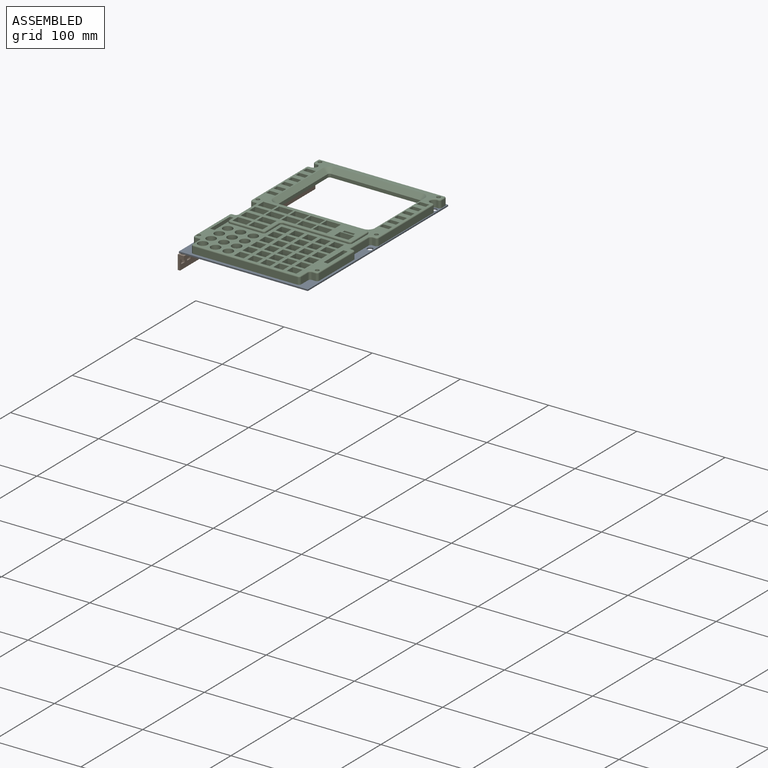
[diagram: assembled view]
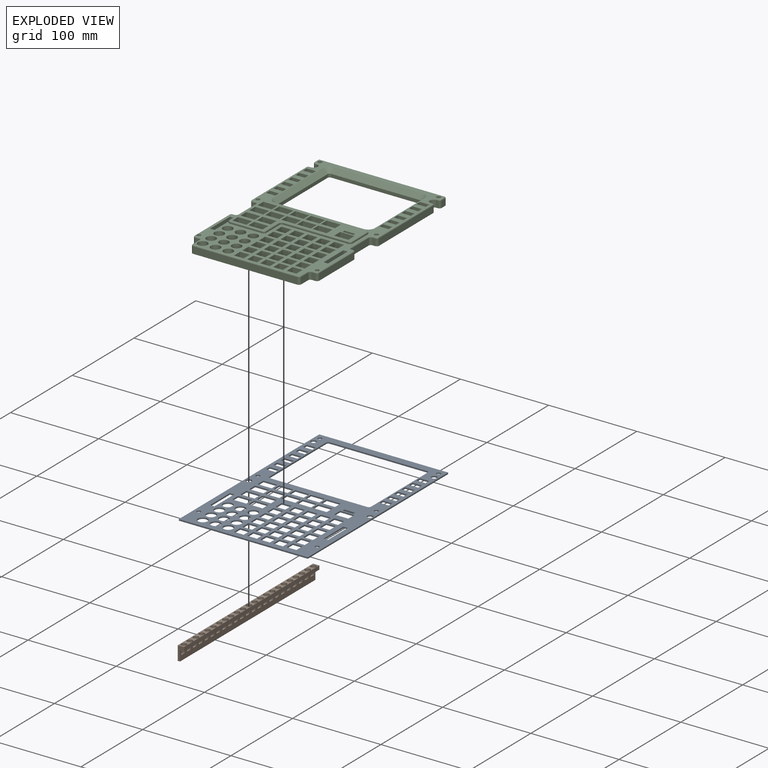
[diagram: exploded view]
GUIDED TOUR — MATED ASSEMBLY (Onshape document 58efedaaf41f8a10530fcf75, AutoMate assembly 58efedaaf41f8a10530fcf75_e3cd90487791a20991c73e07_eecb1307791fb96fc532f97e_default)

This assembly has 3 components, labeled P0..P2 below (a component is one placed occurrence of a part; the same part can appear more than once), held together by 2 mates. A mate is a constraint between two components; its type names the relative motion it leaves free:
  FASTENED — locks the two components together rigidly (no relative motion).
Axis/direction vectors are unit vectors and 'through' points are millimeter coordinates, both in the assembly's world frame.

MATES
  1. FASTENED "Fastened 2": P1 <-> P0, direction (0.000, 0.000, 1.000) through (-151.02, 49.48, -1.42) mm
  2. FASTENED "Fastened 1": P0 <-> P2, direction (0.000, -1.000, 0.000) through (-149.67, -103.75, 0.17) mm

ASSEMBLY ORDER
  1. P2 — the base component [order verified]
  2. P0 [order verified]
  3. P1 [order verified]
Order-tag legend:
  [order verified] — this step's position reverses a verified removal order: the component was checked to insert without passing through the ones already placed.

Of the 3 components, 2 carry the full construction recipe — the FeatureScript program that regenerates the part's solid from scratch; the rest are supplied as boundary geometry only.
Each toured component is shown spotlighted twice — in the assembled view, then in the exploded view, where a leader line traces a displaced component back to its assembled socket (saturated green if recipe-attached, orange if geometry-only; every other component desaturated gray) — followed by its recipe or geometry summary and the mates that hold it.
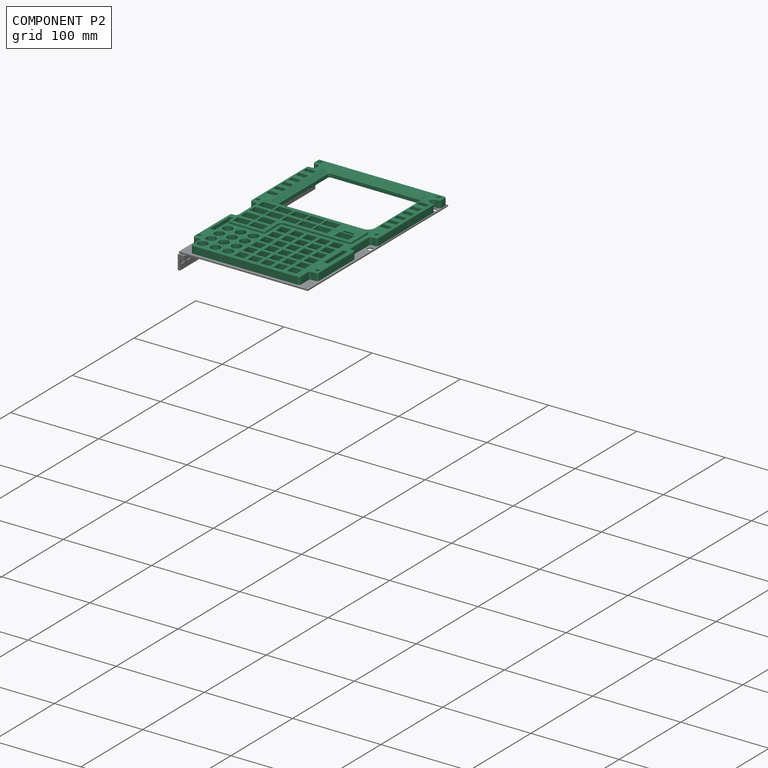
[diagram: component P2 — assembled]
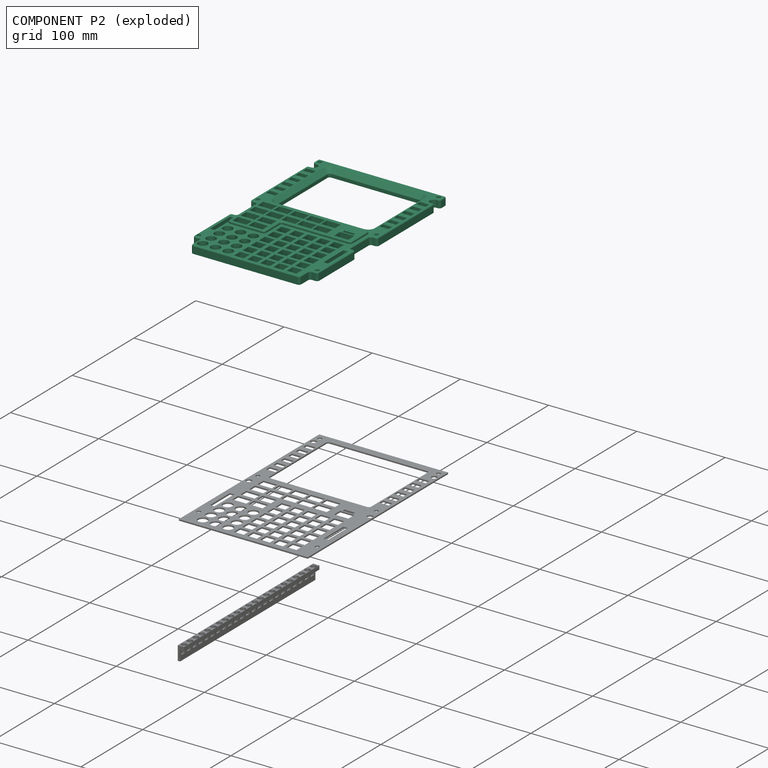
[diagram: component P2 — exploded]
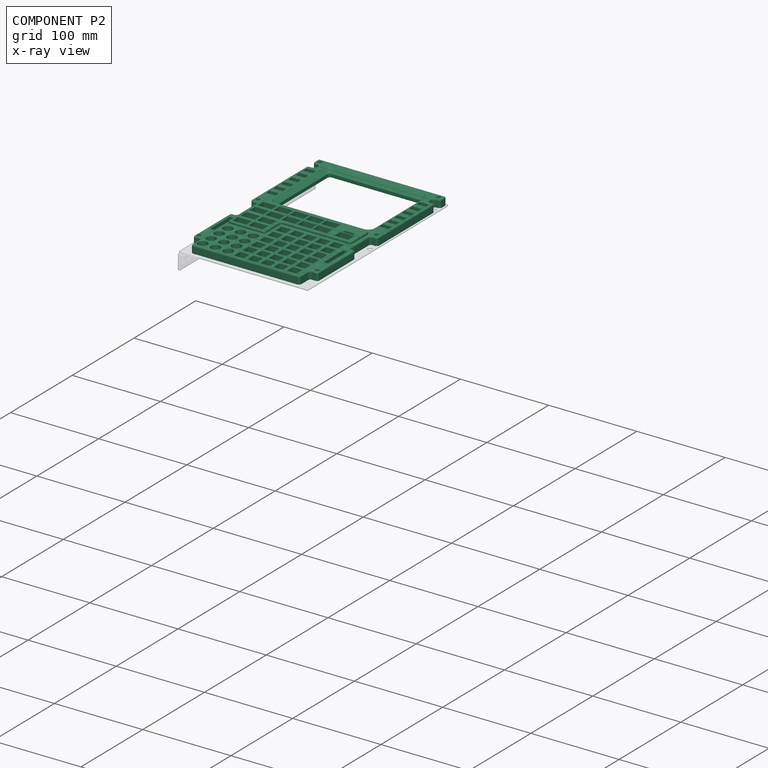
[diagram: component P2 — x-ray view]
COMPONENT P2 — recipe-attached (CADFS 00706664, mesh-verified: the recipe's output STEP matches this component's geometry to below the mesh-comparison resolution (tessellation chordal tolerance ~0.398 mm)).
Held by: FASTENED mate "Fastened 1" to P0.
Construction recipe (FeatureScript — the CAD program that rebuilds this solid; sketch coordinates are in the units given by the * unit suffixes, e.g. mm):

FeatureScript 1511;
import(path : "onshape/std/geometry.fs", version : "1511.0");
import(path : "onshape/std/common.fs", version : "1511.0");
const mm = millimeter;
const VERTEX = EntityType.VERTEX;
const EDGE = EntityType.EDGE;
const FACE = EntityType.FACE;
const BODY = EntityType.BODY;
function v(x, y){return vector(x, y);}
function OD(order){return orderDisambiguation(order);}
function OSD(set){return originalSetDisambiguation(set);}
function TD(topology){return topologyDisambiguation(topology);}
function TDD(query){return trueDependencyDisambiguation(query);}
function sQuery(a, b, c) {return sketchEntityQuery(a, b, c);}

annotation { "Feature Type Name" : "Feature", "Feature Type Description" : "" }
export const myFeature = defineFeature(function(context is Context, id is Id, definition is map)
    precondition{}
    {
        {
            var Q0;
            Q0=qCreatedBy(makeId("Top.planeOp"),FACE);
            var sketch = newSketch(context, id + "F0", { "sketchPlane" : qUnion([Q0])});
            skLineSegment(sketch, "E0.bottom", {"start": v(73.07, 113.67) * mm, "end": v(-73.07, 113.67) * mm});
            skLineSegment(sketch, "E0.top", {"start": v(73.07, -113.66) * mm, "end": v(-73.07, -113.66) * mm});
            skLineSegment(sketch, "E0.left", {"start": v(73.07, 113.67) * mm, "end": v(73.07, -113.66) * mm});
            skLineSegment(sketch, "E0.right", {"start": v(-73.07, 113.67) * mm, "end": v(-73.07, -113.66) * mm});
            skPoint(sketch, "E0.middle", {"position": v(0, 0) * mm});
            skLineSegment(sketch, "E1", {"start": v(0, 113.67) * mm, "end": v(0, 111.74) * mm});
            skLineSegment(sketch, "E2", {"start": v(-69.57, 102.01) * mm, "end": v(-68.34, 102.01) * mm});
            skLineSegment(sketch, "E3", {"start": v(-68.34, 93.24) * mm, "end": v(-69.57, 93.24) * mm});
            skLineSegment(sketch, "E4", {"start": v(-72.11, 90.7) * mm, "end": v(-72.11, 2.93) * mm});
            skLineSegment(sketch, "E5", {"start": v(-69.57, 0.4) * mm, "end": v(-66.53, 0.4) * mm});
            skLineSegment(sketch, "E6", {"start": v(-63.99, -2.15) * mm, "end": v(-63.99, -30.43) * mm});
            skLineSegment(sketch, "E7", {"start": v(-66.53, -32.97) * mm, "end": v(-68.15, -32.97) * mm});
            skLineSegment(sketch, "E8", {"start": v(-70.69, -35.51) * mm, "end": v(-70.69, -91.63) * mm});
            skLineSegment(sketch, "E9", {"start": v(-68.15, -94.17) * mm, "end": v(-64.1, -94.17) * mm});
            skLineSegment(sketch, "E10", {"start": v(-61.57, -96.71) * mm, "end": v(-61.57, -107.92) * mm});
            skLineSegment(sketch, "E11", {"start": v(-59.03, -110.46) * mm, "end": v(0, -110.46) * mm});
            skLineSegment(sketch, "E12", {"start": v(-72.11, 110.47) * mm, "end": v(-72.11, 108.94) * mm});
            skLineSegment(sketch, "E13", {"start": v(-70.84, 111.74) * mm, "end": v(-69.31, 111.74) * mm});
            skLineSegment(sketch, "E14", {"start": v(-72.11, 108.94) * mm, "end": v(-72.11, 104.55) * mm});
            skLineSegment(sketch, "E15", {"start": v(-69.31, 111.74) * mm, "end": v(0, 111.74) * mm});
            skPoint(sketch, "E16.visualSharp", {"position": v(-72.11, 111.74) * mm});
            skArc(sketch, "E16.filletArc", {"start": v(-70.84, 111.74) * mm, "mid": v(-71.74, 111.36) * mm, "end": v(-72.11, 110.47) * mm});
            skArc(sketch, "E17", {"start": v(-68.34, 93.24) * mm, "mid": v(-63.95, 97.62) * mm, "end": v(-68.34, 102.01) * mm});
            skPoint(sketch, "E18.visualSharp", {"position": v(-61.57, -110.46) * mm});
            skArc(sketch, "E18.filletArc", {"start": v(-61.57, -107.92) * mm, "mid": v(-60.82, -109.71) * mm, "end": v(-59.03, -110.46) * mm});
            skPoint(sketch, "E19.visualSharp", {"position": v(-61.57, -94.17) * mm});
            skArc(sketch, "E19.filletArc", {"start": v(-61.57, -96.71) * mm, "mid": v(-62.31, -94.92) * mm, "end": v(-64.1, -94.17) * mm});
            skPoint(sketch, "E20.visualSharp", {"position": v(-70.69, -94.17) * mm});
            skArc(sketch, "E20.filletArc", {"start": v(-70.69, -91.63) * mm, "mid": v(-69.94, -93.43) * mm, "end": v(-68.15, -94.17) * mm});
            skPoint(sketch, "E21.visualSharp", {"position": v(-70.69, -32.97) * mm});
            skArc(sketch, "E21.filletArc", {"start": v(-68.15, -32.97) * mm, "mid": v(-69.94, -33.72) * mm, "end": v(-70.69, -35.51) * mm});
            skPoint(sketch, "E22.visualSharp", {"position": v(-63.99, -32.97) * mm});
            skArc(sketch, "E22.filletArc", {"start": v(-66.53, -32.97) * mm, "mid": v(-64.73, -32.23) * mm, "end": v(-63.99, -30.43) * mm});
            skPoint(sketch, "E23.visualSharp", {"position": v(-63.99, 0.4) * mm});
            skArc(sketch, "E23.filletArc", {"start": v(-63.99, -2.15) * mm, "mid": v(-64.73, -0.35) * mm, "end": v(-66.53, 0.4) * mm});
            skPoint(sketch, "E24.visualSharp", {"position": v(-72.11, 0.4) * mm});
            skArc(sketch, "E24.filletArc", {"start": v(-72.11, 2.93) * mm, "mid": v(-71.37, 1.14) * mm, "end": v(-69.57, 0.4) * mm});
            skPoint(sketch, "E25.visualSharp", {"position": v(-72.11, 102.01) * mm});
            skArc(sketch, "E25.filletArc", {"start": v(-72.11, 104.55) * mm, "mid": v(-71.37, 102.76) * mm, "end": v(-69.57, 102.01) * mm});
            skPoint(sketch, "E26.visualSharp", {"position": v(-72.11, 93.24) * mm});
            skArc(sketch, "E26.filletArc", {"start": v(-69.57, 93.24) * mm, "mid": v(-71.37, 92.5) * mm, "end": v(-72.11, 90.7) * mm});
            skLineSegment(sketch, "E27.bottom", {"start": v(-59, 22.55) * mm, "end": v(-69.41, 22.55) * mm});
            skLineSegment(sketch, "E27.top", {"start": v(-59, 28.39) * mm, "end": v(-69.41, 28.39) * mm});
            skLineSegment(sketch, "E27.left", {"start": v(-59, 22.55) * mm, "end": v(-59, 28.39) * mm});
            skLineSegment(sketch, "E27.right", {"start": v(-69.41, 22.55) * mm, "end": v(-69.41, 28.39) * mm});
            skPoint(sketch, "E27.middle", {"position": v(-64.2, 25.47) * mm});
            skLineSegment(sketch, "E28.bottom", {"start": v(-59, 34.4) * mm, "end": v(-69.41, 34.4) * mm});
            skLineSegment(sketch, "E28.top", {"start": v(-59, 40.25) * mm, "end": v(-69.41, 40.25) * mm});
            skLineSegment(sketch, "E28.left", {"start": v(-59, 34.4) * mm, "end": v(-59, 40.25) * mm});
            skLineSegment(sketch, "E28.right", {"start": v(-69.41, 34.4) * mm, "end": v(-69.41, 40.25) * mm});
            skPoint(sketch, "E28.middle", {"position": v(-64.2, 37.33) * mm});
            skLineSegment(sketch, "E29.bottom", {"start": v(-59, 46.4) * mm, "end": v(-69.41, 46.4) * mm});
            skLineSegment(sketch, "E29.top", {"start": v(-59, 52.23) * mm, "end": v(-69.41, 52.23) * mm});
            skLineSegment(sketch, "E29.left", {"start": v(-59, 46.4) * mm, "end": v(-59, 52.23) * mm});
            skLineSegment(sketch, "E29.right", {"start": v(-69.41, 46.4) * mm, "end": v(-69.41, 52.23) * mm});
            skPoint(sketch, "E29.middle", {"position": v(-64.2, 49.31) * mm});
            skLineSegment(sketch, "E30.bottom", {"start": v(-59, 58.39) * mm, "end": v(-69.42, 58.39) * mm});
            skLineSegment(sketch, "E30.top", {"start": v(-59, 64.26) * mm, "end": v(-69.42, 64.26) * mm});
            skLineSegment(sketch, "E30.left", {"start": v(-59, 58.39) * mm, "end": v(-59, 64.26) * mm});
            skLineSegment(sketch, "E30.right", {"start": v(-69.42, 58.39) * mm, "end": v(-69.42, 64.26) * mm});
            skPoint(sketch, "E30.middle", {"position": v(-64.2, 61.32) * mm});
            skLineSegment(sketch, "E31.bottom", {"start": v(-59, 70.4) * mm, "end": v(-69.42, 70.4) * mm});
            skLineSegment(sketch, "E31.top", {"start": v(-59, 76.26) * mm, "end": v(-69.42, 76.26) * mm});
            skLineSegment(sketch, "E31.left", {"start": v(-59, 70.4) * mm, "end": v(-59, 76.26) * mm});
            skLineSegment(sketch, "E31.right", {"start": v(-69.42, 70.4) * mm, "end": v(-69.42, 76.26) * mm});
            skPoint(sketch, "E31.middle", {"position": v(-64.2, 73.33) * mm});
            skLineSegment(sketch, "E32.bottom", {"start": v(-59, 82.37) * mm, "end": v(-69.42, 82.37) * mm});
            skLineSegment(sketch, "E32.top", {"start": v(-59, 88.2) * mm, "end": v(-69.42, 88.2) * mm});
            skLineSegment(sketch, "E32.left", {"start": v(-59, 82.37) * mm, "end": v(-59, 88.2) * mm});
            skLineSegment(sketch, "E32.right", {"start": v(-69.42, 82.37) * mm, "end": v(-69.42, 88.2) * mm});
            skPoint(sketch, "E32.middle", {"position": v(-64.2, 85.29) * mm});
            skLineSegment(sketch, "E33", {"start": v(0, 100.27) * mm, "end": v(-50.04, 100.27) * mm});
            skLineSegment(sketch, "E34", {"start": v(-52.58, 97.73) * mm, "end": v(-52.58, 17.05) * mm});
            skLineSegment(sketch, "E35", {"start": v(-50.04, 14.51) * mm, "end": v(0, 14.51) * mm});
            skPoint(sketch, "E36.visualSharp", {"position": v(-52.58, 14.51) * mm});
            skArc(sketch, "E36.filletArc", {"start": v(-52.58, 17.05) * mm, "mid": v(-51.83, 15.26) * mm, "end": v(-50.04, 14.51) * mm});
            skPoint(sketch, "E37.visualSharp", {"position": v(-52.58, 100.27) * mm});
            skArc(sketch, "E37.filletArc", {"start": v(-50.04, 100.27) * mm, "mid": v(-51.83, 99.53) * mm, "end": v(-52.58, 97.73) * mm});
            skLineSegment(sketch, "E38", {"start": v(0, 105.03) * mm, "end": v(-54.96, 105.03) * mm});
            skLineSegment(sketch, "E39", {"start": v(-57.5, 102.49) * mm, "end": v(-57.5, 11.14) * mm});
            skLineSegment(sketch, "E40", {"start": v(-54.96, 8.6) * mm, "end": v(0, 8.6) * mm});
            skLineSegment(sketch, "E41.MirrorCS", {"start": v(59.03, -110.46) * mm, "end": v(0, -110.46) * mm});
            skArc(sketch, "E42.MirrorCS", {"start": v(61.57, -107.92) * mm, "mid": v(60.82, -109.71) * mm, "end": v(59.03, -110.46) * mm});
            skLineSegment(sketch, "E43.MirrorCS", {"start": v(61.57, -96.71) * mm, "end": v(61.57, -107.92) * mm});
            skArc(sketch, "E44.MirrorCS", {"start": v(61.57, -96.71) * mm, "mid": v(62.31, -94.92) * mm, "end": v(64.1, -94.17) * mm});
            skLineSegment(sketch, "E45.MirrorCS", {"start": v(68.15, -94.17) * mm, "end": v(64.1, -94.17) * mm});
            skArc(sketch, "E46.MirrorCS", {"start": v(70.69, -91.63) * mm, "mid": v(69.94, -93.43) * mm, "end": v(68.15, -94.17) * mm});
            skLineSegment(sketch, "E47.MirrorCS", {"start": v(70.69, -35.51) * mm, "end": v(70.69, -91.63) * mm});
            skArc(sketch, "E48.MirrorCS", {"start": v(68.15, -32.97) * mm, "mid": v(69.94, -33.72) * mm, "end": v(70.69, -35.51) * mm});
            skLineSegment(sketch, "E49.MirrorCS", {"start": v(66.53, -32.97) * mm, "end": v(68.15, -32.97) * mm});
            skArc(sketch, "E50.MirrorCS", {"start": v(66.53, -32.97) * mm, "mid": v(64.73, -32.23) * mm, "end": v(63.99, -30.43) * mm});
            skLineSegment(sketch, "E51.MirrorCS", {"start": v(63.99, -2.15) * mm, "end": v(63.99, -30.43) * mm});
            skArc(sketch, "E52.MirrorCS", {"start": v(63.99, -2.15) * mm, "mid": v(64.73, -0.35) * mm, "end": v(66.53, 0.4) * mm});
            skLineSegment(sketch, "E53.MirrorCS", {"start": v(69.57, 0.4) * mm, "end": v(66.53, 0.4) * mm});
            skArc(sketch, "E54.MirrorCS", {"start": v(72.11, 2.93) * mm, "mid": v(71.37, 1.14) * mm, "end": v(69.57, 0.4) * mm});
            skLineSegment(sketch, "E55.MirrorCS", {"start": v(72.11, 90.7) * mm, "end": v(72.11, 2.93) * mm});
            skLineSegment(sketch, "E56.MirrorCS", {"start": v(69.41, 22.55) * mm, "end": v(69.41, 28.39) * mm});
            skLineSegment(sketch, "E57.MirrorCS", {"start": v(59, 22.55) * mm, "end": v(69.41, 22.55) * mm});
            skLineSegment(sketch, "E58.MirrorCS", {"start": v(59, 22.55) * mm, "end": v(59, 28.39) * mm});
            skLineSegment(sketch, "E59.MirrorCS", {"start": v(59, 28.39) * mm, "end": v(69.41, 28.39) * mm});
            skLineSegment(sketch, "E60.MirrorCS", {"start": v(59, 34.4) * mm, "end": v(69.41, 34.4) * mm});
            skLineSegment(sketch, "E61.MirrorCS", {"start": v(59, 34.4) * mm, "end": v(59, 40.25) * mm});
            skLineSegment(sketch, "E62.MirrorCS", {"start": v(59, 40.25) * mm, "end": v(69.41, 40.25) * mm});
            skLineSegment(sketch, "E63.MirrorCS", {"start": v(69.41, 34.4) * mm, "end": v(69.41, 40.25) * mm});
            skLineSegment(sketch, "E64.MirrorCS", {"start": v(59, 46.4) * mm, "end": v(69.41, 46.4) * mm});
            skLineSegment(sketch, "E65.MirrorCS", {"start": v(59, 46.4) * mm, "end": v(59, 52.23) * mm});
            skLineSegment(sketch, "E66.MirrorCS", {"start": v(59, 52.23) * mm, "end": v(69.41, 52.23) * mm});
            skLineSegment(sketch, "E67.MirrorCS", {"start": v(69.41, 46.4) * mm, "end": v(69.41, 52.23) * mm});
            skLineSegment(sketch, "E68.MirrorCS", {"start": v(59, 58.39) * mm, "end": v(69.42, 58.39) * mm});
            skLineSegment(sketch, "E69.MirrorCS", {"start": v(69.42, 58.39) * mm, "end": v(69.42, 64.26) * mm});
            skLineSegment(sketch, "E70.MirrorCS", {"start": v(59, 64.26) * mm, "end": v(69.42, 64.26) * mm});
            skLineSegment(sketch, "E71.MirrorCS", {"start": v(59, 58.39) * mm, "end": v(59, 64.26) * mm});
            skLineSegment(sketch, "E72.MirrorCS", {"start": v(59, 70.4) * mm, "end": v(69.42, 70.4) * mm});
            skLineSegment(sketch, "E73.MirrorCS", {"start": v(69.42, 70.4) * mm, "end": v(69.42, 76.26) * mm});
            skLineSegment(sketch, "E74.MirrorCS", {"start": v(59, 76.26) * mm, "end": v(69.42, 76.26) * mm});
            skLineSegment(sketch, "E75.MirrorCS", {"start": v(59, 70.4) * mm, "end": v(59, 76.26) * mm});
            skLineSegment(sketch, "E76.MirrorCS", {"start": v(59, 82.37) * mm, "end": v(69.42, 82.37) * mm});
            skLineSegment(sketch, "E77.MirrorCS", {"start": v(69.42, 82.37) * mm, "end": v(69.42, 88.2) * mm});
            skLineSegment(sketch, "E78.MirrorCS", {"start": v(59, 88.2) * mm, "end": v(69.42, 88.2) * mm});
            skLineSegment(sketch, "E79.MirrorCS", {"start": v(59, 82.37) * mm, "end": v(59, 88.2) * mm});
            skArc(sketch, "E80.MirrorCS", {"start": v(69.57, 93.24) * mm, "mid": v(71.37, 92.5) * mm, "end": v(72.11, 90.7) * mm});
            skLineSegment(sketch, "E81.MirrorCS", {"start": v(68.34, 93.24) * mm, "end": v(69.57, 93.24) * mm});
            skArc(sketch, "E82.MirrorCS", {"start": v(68.34, 93.24) * mm, "mid": v(63.95, 97.62) * mm, "end": v(68.34, 102.01) * mm});
            skLineSegment(sketch, "E83.MirrorCS", {"start": v(69.57, 102.01) * mm, "end": v(68.34, 102.01) * mm});
            skArc(sketch, "E84.MirrorCS", {"start": v(72.11, 104.55) * mm, "mid": v(71.37, 102.76) * mm, "end": v(69.57, 102.01) * mm});
            skLineSegment(sketch, "E85.MirrorCS", {"start": v(72.11, 108.94) * mm, "end": v(72.11, 104.55) * mm});
            skLineSegment(sketch, "E86.MirrorCS", {"start": v(72.11, 110.47) * mm, "end": v(72.11, 108.94) * mm});
            skArc(sketch, "E87.MirrorCS", {"start": v(70.84, 111.74) * mm, "mid": v(71.74, 111.36) * mm, "end": v(72.11, 110.47) * mm});
            skLineSegment(sketch, "E88.MirrorCS", {"start": v(70.84, 111.74) * mm, "end": v(69.31, 111.74) * mm});
            skLineSegment(sketch, "E89.MirrorCS", {"start": v(69.31, 111.74) * mm, "end": v(0, 111.74) * mm});
            skLineSegment(sketch, "E90.MirrorCS", {"start": v(50.04, 14.51) * mm, "end": v(0, 14.51) * mm});
            skArc(sketch, "E91.MirrorCS", {"start": v(52.58, 17.05) * mm, "mid": v(51.83, 15.26) * mm, "end": v(50.04, 14.51) * mm});
            skLineSegment(sketch, "E92.MirrorCS", {"start": v(52.58, 97.73) * mm, "end": v(52.58, 17.05) * mm});
            skArc(sketch, "E93.MirrorCS", {"start": v(50.04, 100.27) * mm, "mid": v(51.83, 99.53) * mm, "end": v(52.58, 97.73) * mm});
            skLineSegment(sketch, "E94.MirrorCS", {"start": v(0, 100.27) * mm, "end": v(50.04, 100.27) * mm});
            skPoint(sketch, "E95.visualSharp", {"position": v(-57.5, 105.03) * mm});
            skArc(sketch, "E95.filletArc", {"start": v(-54.96, 105.03) * mm, "mid": v(-56.76, 104.28) * mm, "end": v(-57.5, 102.49) * mm});
            skPoint(sketch, "E96.visualSharp", {"position": v(-57.5, 8.6) * mm});
            skArc(sketch, "E96.filletArc", {"start": v(-57.5, 11.14) * mm, "mid": v(-56.76, 9.35) * mm, "end": v(-54.96, 8.6) * mm});
            skLineSegment(sketch, "E97.MirrorCS", {"start": v(54.96, 8.6) * mm, "end": v(0, 8.6) * mm});
            skArc(sketch, "E98.MirrorCS", {"start": v(57.5, 11.14) * mm, "mid": v(56.76, 9.35) * mm, "end": v(54.96, 8.6) * mm});
            skLineSegment(sketch, "E99.MirrorCS", {"start": v(57.5, 102.49) * mm, "end": v(57.5, 11.14) * mm});
            skArc(sketch, "E100.MirrorCS", {"start": v(54.96, 105.03) * mm, "mid": v(56.76, 104.28) * mm, "end": v(57.5, 102.49) * mm});
            skLineSegment(sketch, "E101.MirrorCS", {"start": v(0, 105.03) * mm, "end": v(54.96, 105.03) * mm});
            skCircle(sketch, "E102", {"center": v(-53.9, -61.88) * mm, "radius": 5.37 * mm});
            skCircle(sketch, "E103", {"center": v(-39.39, -61.88) * mm, "radius": 5.37 * mm});
            skCircle(sketch, "E104", {"center": v(-24.9, -61.88) * mm, "radius": 5.37 * mm});
            skCircle(sketch, "E105", {"center": v(-53.9, -75.58) * mm, "radius": 5.37 * mm});
            skCircle(sketch, "E106", {"center": v(-39.39, -75.58) * mm, "radius": 5.37 * mm});
            skCircle(sketch, "E107", {"center": v(-24.9, -75.58) * mm, "radius": 5.37 * mm});
            skCircle(sketch, "E108", {"center": v(-39.39, -88.8) * mm, "radius": 5.37 * mm});
            skCircle(sketch, "E109", {"center": v(-53.9, -88.8) * mm, "radius": 5.37 * mm});
            skCircle(sketch, "E110", {"center": v(-24.9, -88.8) * mm, "radius": 5.37 * mm});
            skCircle(sketch, "E111", {"center": v(-39.39, -102.26) * mm, "radius": 5.37 * mm});
            skCircle(sketch, "E112", {"center": v(-24.9, -102.26) * mm, "radius": 5.37 * mm});
            skCircle(sketch, "E113", {"center": v(-53.9, -102.26) * mm, "radius": 5.37 * mm});
            skLineSegment(sketch, "E114.bottom", {"start": v(-4.04, -29.98) * mm, "end": v(-15.02, -29.98) * mm});
            skLineSegment(sketch, "E114.top", {"start": v(-4.04, -39.93) * mm, "end": v(-15.02, -39.93) * mm});
            skLineSegment(sketch, "E114.left", {"start": v(-4.04, -29.98) * mm, "end": v(-4.04, -39.93) * mm});
            skLineSegment(sketch, "E114.right", {"start": v(-15.02, -29.98) * mm, "end": v(-15.02, -39.93) * mm});
            skPoint(sketch, "E114.middle", {"position": v(-9.53, -34.95) * mm});
            skLineSegment(sketch, "E115.bottom", {"start": v(-4.04, -43.44) * mm, "end": v(-15.02, -43.44) * mm});
            skLineSegment(sketch, "E115.top", {"start": v(-4.04, -53.4) * mm, "end": v(-15.02, -53.4) * mm});
            skLineSegment(sketch, "E115.left", {"start": v(-4.04, -43.44) * mm, "end": v(-4.04, -53.4) * mm});
            skLineSegment(sketch, "E115.right", {"start": v(-15.02, -43.44) * mm, "end": v(-15.02, -53.4) * mm});
            skPoint(sketch, "E115.middle", {"position": v(-9.53, -48.42) * mm});
            skLineSegment(sketch, "E116.bottom", {"start": v(-4.04, -66.85) * mm, "end": v(-15.02, -66.85) * mm});
            skLineSegment(sketch, "E116.top", {"start": v(-4.04, -56.9) * mm, "end": v(-15.02, -56.9) * mm});
            skLineSegment(sketch, "E116.left", {"start": v(-4.04, -66.85) * mm, "end": v(-4.04, -56.9) * mm});
            skLineSegment(sketch, "E116.right", {"start": v(-15.02, -66.85) * mm, "end": v(-15.02, -56.9) * mm});
            skPoint(sketch, "E116.middle", {"position": v(-9.53, -61.88) * mm});
            skLineSegment(sketch, "E117.bottom", {"start": v(-4.04, -80.32) * mm, "end": v(-15.02, -80.32) * mm});
            skLineSegment(sketch, "E117.top", {"start": v(-4.04, -70.36) * mm, "end": v(-15.02, -70.36) * mm});
            skLineSegment(sketch, "E117.left", {"start": v(-4.04, -80.32) * mm, "end": v(-4.04, -70.36) * mm});
            skLineSegment(sketch, "E117.right", {"start": v(-15.02, -80.32) * mm, "end": v(-15.02, -70.36) * mm});
            skPoint(sketch, "E117.middle", {"position": v(-9.53, -75.34) * mm});
            skLineSegment(sketch, "E118.bottom", {"start": v(-4.04, -93.79) * mm, "end": v(-15.02, -93.79) * mm});
            skLineSegment(sketch, "E118.top", {"start": v(-4.04, -83.82) * mm, "end": v(-15.02, -83.82) * mm});
            skLineSegment(sketch, "E118.left", {"start": v(-4.04, -93.79) * mm, "end": v(-4.04, -83.82) * mm});
            skLineSegment(sketch, "E118.right", {"start": v(-15.02, -93.79) * mm, "end": v(-15.02, -83.82) * mm});
            skPoint(sketch, "E118.middle", {"position": v(-9.53, -88.8) * mm});
            skLineSegment(sketch, "E119.bottom", {"start": v(-4.04, -97.28) * mm, "end": v(-15.02, -97.28) * mm});
            skLineSegment(sketch, "E119.top", {"start": v(-4.04, -107.24) * mm, "end": v(-15.02, -107.24) * mm});
            skLineSegment(sketch, "E119.left", {"start": v(-4.04, -97.28) * mm, "end": v(-4.04, -107.24) * mm});
            skLineSegment(sketch, "E119.right", {"start": v(-15.02, -97.28) * mm, "end": v(-15.02, -107.24) * mm});
            skPoint(sketch, "E119.middle", {"position": v(-9.53, -102.26) * mm});
            skLineSegment(sketch, "E120.bottom", {"start": v(10.97, -29.98) * mm, "end": v(0, -29.98) * mm});
            skLineSegment(sketch, "E120.top", {"start": v(10.97, -39.93) * mm, "end": v(0, -39.93) * mm});
            skLineSegment(sketch, "E120.left", {"start": v(10.97, -29.98) * mm, "end": v(10.97, -39.93) * mm});
            skLineSegment(sketch, "E120.right", {"start": v(0, -29.98) * mm, "end": v(0, -39.93) * mm});
            skLineSegment(sketch, "E121.bottom", {"start": v(10.97, -43.44) * mm, "end": v(0, -43.44) * mm});
            skLineSegment(sketch, "E121.top", {"start": v(10.97, -53.4) * mm, "end": v(0, -53.4) * mm});
            skLineSegment(sketch, "E121.left", {"start": v(10.97, -43.44) * mm, "end": v(10.97, -53.4) * mm});
            skLineSegment(sketch, "E121.right", {"start": v(0, -43.44) * mm, "end": v(0, -53.4) * mm});
            skLineSegment(sketch, "E122.bottom", {"start": v(10.97, -66.85) * mm, "end": v(0, -66.85) * mm});
            skLineSegment(sketch, "E122.top", {"start": v(10.97, -56.9) * mm, "end": v(0, -56.9) * mm});
            skLineSegment(sketch, "E122.left", {"start": v(10.97, -66.85) * mm, "end": v(10.97, -56.9) * mm});
            skLineSegment(sketch, "E122.right", {"start": v(0, -66.85) * mm, "end": v(0, -56.9) * mm});
            skLineSegment(sketch, "E123.bottom", {"start": v(10.97, -80.32) * mm, "end": v(0, -80.32) * mm});
            skLineSegment(sketch, "E123.top", {"start": v(10.97, -70.36) * mm, "end": v(0, -70.36) * mm});
            skLineSegment(sketch, "E123.left", {"start": v(10.97, -80.32) * mm, "end": v(10.97, -70.36) * mm});
            skLineSegment(sketch, "E123.right", {"start": v(0, -80.32) * mm, "end": v(0, -70.36) * mm});
            skLineSegment(sketch, "E124.bottom", {"start": v(10.97, -93.79) * mm, "end": v(0, -93.79) * mm});
            skLineSegment(sketch, "E124.top", {"start": v(10.97, -83.82) * mm, "end": v(0, -83.82) * mm});
            skLineSegment(sketch, "E124.left", {"start": v(10.97, -93.79) * mm, "end": v(10.97, -83.82) * mm});
            skLineSegment(sketch, "E124.right", {"start": v(0, -93.79) * mm, "end": v(0, -83.82) * mm});
            skLineSegment(sketch, "E125.bottom", {"start": v(10.97, -97.28) * mm, "end": v(0, -97.28) * mm});
            skLineSegment(sketch, "E125.top", {"start": v(10.97, -107.24) * mm, "end": v(0, -107.24) * mm});
            skLineSegment(sketch, "E125.left", {"start": v(10.97, -97.28) * mm, "end": v(10.97, -107.24) * mm});
            skLineSegment(sketch, "E125.right", {"start": v(0, -97.28) * mm, "end": v(0, -107.24) * mm});
            skLineSegment(sketch, "E126.bottom", {"start": v(25.63, -29.98) * mm, "end": v(14.65, -29.98) * mm});
            skLineSegment(sketch, "E126.top", {"start": v(25.63, -39.93) * mm, "end": v(14.65, -39.93) * mm});
            skLineSegment(sketch, "E126.left", {"start": v(25.63, -29.98) * mm, "end": v(25.63, -39.93) * mm});
            skLineSegment(sketch, "E126.right", {"start": v(14.65, -29.98) * mm, "end": v(14.65, -39.93) * mm});
            skLineSegment(sketch, "E127.bottom", {"start": v(25.63, -43.44) * mm, "end": v(14.65, -43.44) * mm});
            skLineSegment(sketch, "E127.top", {"start": v(25.63, -53.4) * mm, "end": v(14.65, -53.4) * mm});
            skLineSegment(sketch, "E127.left", {"start": v(25.63, -43.44) * mm, "end": v(25.63, -53.4) * mm});
            skLineSegment(sketch, "E127.right", {"start": v(14.65, -43.44) * mm, "end": v(14.65, -53.4) * mm});
            skLineSegment(sketch, "E128.bottom", {"start": v(25.63, -66.85) * mm, "end": v(14.65, -66.85) * mm});
            skLineSegment(sketch, "E128.top", {"start": v(25.63, -56.9) * mm, "end": v(14.65, -56.9) * mm});
            skLineSegment(sketch, "E128.left", {"start": v(25.63, -66.85) * mm, "end": v(25.63, -56.9) * mm});
            skLineSegment(sketch, "E128.right", {"start": v(14.65, -66.85) * mm, "end": v(14.65, -56.9) * mm});
            skLineSegment(sketch, "E129.bottom", {"start": v(25.63, -80.32) * mm, "end": v(14.65, -80.32) * mm});
            skLineSegment(sketch, "E129.top", {"start": v(25.63, -70.36) * mm, "end": v(14.65, -70.36) * mm});
            skLineSegment(sketch, "E129.left", {"start": v(25.63, -80.32) * mm, "end": v(25.63, -70.36) * mm});
            skLineSegment(sketch, "E129.right", {"start": v(14.65, -80.32) * mm, "end": v(14.65, -70.36) * mm});
            skLineSegment(sketch, "E130.bottom", {"start": v(25.63, -93.79) * mm, "end": v(14.65, -93.79) * mm});
            skLineSegment(sketch, "E130.top", {"start": v(25.63, -83.82) * mm, "end": v(14.65, -83.82) * mm});
            skLineSegment(sketch, "E130.left", {"start": v(25.63, -93.79) * mm, "end": v(25.63, -83.82) * mm});
            skLineSegment(sketch, "E130.right", {"start": v(14.65, -93.79) * mm, "end": v(14.65, -83.82) * mm});
            skLineSegment(sketch, "E131.bottom", {"start": v(25.63, -97.28) * mm, "end": v(14.65, -97.28) * mm});
            skLineSegment(sketch, "E131.top", {"start": v(25.63, -107.24) * mm, "end": v(14.65, -107.24) * mm});
            skLineSegment(sketch, "E131.left", {"start": v(25.63, -97.28) * mm, "end": v(25.63, -107.24) * mm});
            skLineSegment(sketch, "E131.right", {"start": v(14.65, -97.28) * mm, "end": v(14.65, -107.24) * mm});
            skLineSegment(sketch, "E132.bottom", {"start": v(40.46, -29.98) * mm, "end": v(29.49, -29.98) * mm});
            skLineSegment(sketch, "E132.top", {"start": v(40.46, -39.93) * mm, "end": v(29.49, -39.93) * mm});
            skLineSegment(sketch, "E132.left", {"start": v(40.46, -29.98) * mm, "end": v(40.46, -39.93) * mm});
            skLineSegment(sketch, "E132.right", {"start": v(29.49, -29.98) * mm, "end": v(29.49, -39.93) * mm});
            skLineSegment(sketch, "E133.bottom", {"start": v(40.46, -43.44) * mm, "end": v(29.49, -43.44) * mm});
            skLineSegment(sketch, "E133.top", {"start": v(40.46, -53.4) * mm, "end": v(29.49, -53.4) * mm});
            skLineSegment(sketch, "E133.left", {"start": v(40.46, -43.44) * mm, "end": v(40.46, -53.4) * mm});
            skLineSegment(sketch, "E133.right", {"start": v(29.49, -43.44) * mm, "end": v(29.49, -53.4) * mm});
            skLineSegment(sketch, "E134.bottom", {"start": v(40.46, -66.85) * mm, "end": v(29.49, -66.85) * mm});
            skLineSegment(sketch, "E134.top", {"start": v(40.46, -56.9) * mm, "end": v(29.49, -56.9) * mm});
            skLineSegment(sketch, "E134.left", {"start": v(40.46, -66.85) * mm, "end": v(40.46, -56.9) * mm});
            skLineSegment(sketch, "E134.right", {"start": v(29.49, -66.85) * mm, "end": v(29.49, -56.9) * mm});
            skLineSegment(sketch, "E135.bottom", {"start": v(40.46, -80.32) * mm, "end": v(29.49, -80.32) * mm});
            skLineSegment(sketch, "E135.top", {"start": v(40.46, -70.36) * mm, "end": v(29.49, -70.36) * mm});
            skLineSegment(sketch, "E135.left", {"start": v(40.46, -80.32) * mm, "end": v(40.46, -70.36) * mm});
            skLineSegment(sketch, "E135.right", {"start": v(29.49, -80.32) * mm, "end": v(29.49, -70.36) * mm});
            skLineSegment(sketch, "E136.bottom", {"start": v(40.46, -93.79) * mm, "end": v(29.49, -93.79) * mm});
            skLineSegment(sketch, "E136.top", {"start": v(40.46, -83.82) * mm, "end": v(29.49, -83.82) * mm});
            skLineSegment(sketch, "E136.left", {"start": v(40.46, -93.79) * mm, "end": v(40.46, -83.82) * mm});
            skLineSegment(sketch, "E136.right", {"start": v(29.49, -93.79) * mm, "end": v(29.49, -83.82) * mm});
            skLineSegment(sketch, "E137.bottom", {"start": v(40.46, -97.28) * mm, "end": v(29.49, -97.28) * mm});
            skLineSegment(sketch, "E137.top", {"start": v(40.46, -107.24) * mm, "end": v(29.49, -107.24) * mm});
            skLineSegment(sketch, "E137.left", {"start": v(40.46, -97.28) * mm, "end": v(40.46, -107.24) * mm});
            skLineSegment(sketch, "E137.right", {"start": v(29.49, -97.28) * mm, "end": v(29.49, -107.24) * mm});
            skLineSegment(sketch, "E138.bottom", {"start": v(55.3, -29.4) * mm, "end": v(44.32, -29.4) * mm});
            skLineSegment(sketch, "E138.top", {"start": v(55.3, -39.36) * mm, "end": v(44.32, -39.36) * mm});
            skLineSegment(sketch, "E138.left", {"start": v(55.3, -29.4) * mm, "end": v(55.3, -39.36) * mm});
            skLineSegment(sketch, "E138.right", {"start": v(44.32, -29.4) * mm, "end": v(44.32, -39.36) * mm});
            skLineSegment(sketch, "E139.bottom", {"start": v(55.3, -42.87) * mm, "end": v(44.32, -42.87) * mm});
            skLineSegment(sketch, "E139.top", {"start": v(55.3, -52.82) * mm, "end": v(44.32, -52.82) * mm});
            skLineSegment(sketch, "E139.left", {"start": v(55.3, -42.87) * mm, "end": v(55.3, -52.82) * mm});
            skLineSegment(sketch, "E139.right", {"start": v(44.32, -42.87) * mm, "end": v(44.32, -52.82) * mm});
            skLineSegment(sketch, "E140.bottom", {"start": v(55.3, -66.28) * mm, "end": v(44.32, -66.28) * mm});
            skLineSegment(sketch, "E140.top", {"start": v(55.3, -56.33) * mm, "end": v(44.32, -56.33) * mm});
            skLineSegment(sketch, "E140.left", {"start": v(55.3, -66.28) * mm, "end": v(55.3, -56.33) * mm});
            skLineSegment(sketch, "E140.right", {"start": v(44.32, -66.28) * mm, "end": v(44.32, -56.33) * mm});
            skLineSegment(sketch, "E141.bottom", {"start": v(55.3, -79.75) * mm, "end": v(44.32, -79.75) * mm});
            skLineSegment(sketch, "E141.top", {"start": v(55.3, -69.79) * mm, "end": v(44.32, -69.79) * mm});
            skLineSegment(sketch, "E141.left", {"start": v(55.3, -79.75) * mm, "end": v(55.3, -69.79) * mm});
            skLineSegment(sketch, "E141.right", {"start": v(44.32, -79.75) * mm, "end": v(44.32, -69.79) * mm});
            skLineSegment(sketch, "E142.bottom", {"start": v(55.3, -93.21) * mm, "end": v(44.32, -93.21) * mm});
            skLineSegment(sketch, "E142.top", {"start": v(55.3, -83.25) * mm, "end": v(44.32, -83.25) * mm});
            skLineSegment(sketch, "E142.left", {"start": v(55.3, -93.21) * mm, "end": v(55.3, -83.25) * mm});
            skLineSegment(sketch, "E142.right", {"start": v(44.32, -93.21) * mm, "end": v(44.32, -83.25) * mm});
            skLineSegment(sketch, "E143.bottom", {"start": v(55.3, -96.71) * mm, "end": v(44.32, -96.71) * mm});
            skLineSegment(sketch, "E143.top", {"start": v(55.3, -106.67) * mm, "end": v(44.32, -106.67) * mm});
            skLineSegment(sketch, "E143.left", {"start": v(55.3, -96.71) * mm, "end": v(55.3, -106.67) * mm});
            skLineSegment(sketch, "E143.right", {"start": v(44.32, -96.71) * mm, "end": v(44.32, -106.67) * mm});
            skLineSegment(sketch, "E144.bottom", {"start": v(61.61, -39.56) * mm, "end": v(66.54, -39.56) * mm});
            skLineSegment(sketch, "E144.top", {"start": v(61.61, -71.64) * mm, "end": v(66.54, -71.64) * mm});
            skLineSegment(sketch, "E144.left", {"start": v(61.61, -39.56) * mm, "end": v(61.61, -71.64) * mm});
            skLineSegment(sketch, "E144.right", {"start": v(66.54, -39.56) * mm, "end": v(66.54, -71.64) * mm});
            skLineSegment(sketch, "E145.bottom", {"start": v(-67, -39.56) * mm, "end": v(-62.07, -39.56) * mm});
            skLineSegment(sketch, "E145.top", {"start": v(-67, -71.64) * mm, "end": v(-62.07, -71.64) * mm});
            skLineSegment(sketch, "E145.left", {"start": v(-67, -39.56) * mm, "end": v(-67, -71.64) * mm});
            skLineSegment(sketch, "E145.right", {"start": v(-62.07, -39.56) * mm, "end": v(-62.07, -71.64) * mm});
            skLineSegment(sketch, "E146", {"start": v(-58.24, 4.59) * mm, "end": v(0, 4.59) * mm});
            skLineSegment(sketch, "E147", {"start": v(57.5, 4.59) * mm, "end": v(0, 4.59) * mm});
            skLineSegment(sketch, "E148", {"start": v(-60.78, -49.72) * mm, "end": v(-60.78, 2.05) * mm});
            skLineSegment(sketch, "E149", {"start": v(-21.53, -52.26) * mm, "end": v(-58.24, -52.26) * mm});
            skLineSegment(sketch, "E150", {"start": v(-19, -28.14) * mm, "end": v(-19, -49.72) * mm});
            skLineSegment(sketch, "E151", {"start": v(-16.45, -25.6) * mm, "end": v(57.5, -25.6) * mm});
            skLineSegment(sketch, "E152", {"start": v(60.04, -23.06) * mm, "end": v(60.04, 2.05) * mm});
            skPoint(sketch, "E153.visualSharp", {"position": v(60.04, 4.59) * mm});
            skArc(sketch, "E153.filletArc", {"start": v(60.04, 2.05) * mm, "mid": v(59.3, 3.85) * mm, "end": v(57.5, 4.59) * mm});
            skPoint(sketch, "E154.visualSharp", {"position": v(60.04, -25.6) * mm});
            skArc(sketch, "E154.filletArc", {"start": v(57.5, -25.6) * mm, "mid": v(59.3, -24.86) * mm, "end": v(60.04, -23.06) * mm});
            skPoint(sketch, "E155.visualSharp", {"position": v(-60.78, 4.59) * mm});
            skArc(sketch, "E155.filletArc", {"start": v(-58.24, 4.59) * mm, "mid": v(-60.03, 3.85) * mm, "end": v(-60.78, 2.05) * mm});
            skPoint(sketch, "E156.visualSharp", {"position": v(-60.78, -52.26) * mm});
            skArc(sketch, "E156.filletArc", {"start": v(-60.78, -49.72) * mm, "mid": v(-60.03, -51.52) * mm, "end": v(-58.24, -52.26) * mm});
            skPoint(sketch, "E157.visualSharp", {"position": v(-19, -52.26) * mm});
            skArc(sketch, "E157.filletArc", {"start": v(-21.53, -52.26) * mm, "mid": v(-19.74, -51.52) * mm, "end": v(-19, -49.72) * mm});
            skPoint(sketch, "E158.visualSharp", {"position": v(-19, -25.6) * mm});
            skArc(sketch, "E158.filletArc", {"start": v(-16.45, -25.6) * mm, "mid": v(-18.25, -26.35) * mm, "end": v(-19, -28.14) * mm});
            skLineSegment(sketch, "E159", {"start": v(-57.18, -8.79) * mm, "end": v(-57.18, 0.6) * mm});
            skLineSegment(sketch, "E160", {"start": v(-41.34, 0.6) * mm, "end": v(-57.18, 0.6) * mm});
            skLineSegment(sketch, "E161", {"start": v(-41.34, -8.79) * mm, "end": v(-57.18, -8.79) * mm});
            skLineSegment(sketch, "E162", {"start": v(-41.34, 0.6) * mm, "end": v(-41.34, -8.79) * mm});
            skLineSegment(sketch, "E163", {"start": v(-57.18, -22.24) * mm, "end": v(-57.18, -12.86) * mm});
            skLineSegment(sketch, "E164", {"start": v(-41.34, -12.86) * mm, "end": v(-57.18, -12.86) * mm});
            skLineSegment(sketch, "E165", {"start": v(-41.34, -22.24) * mm, "end": v(-57.18, -22.24) * mm});
            skLineSegment(sketch, "E166", {"start": v(-41.34, -12.86) * mm, "end": v(-41.34, -22.24) * mm});
            skLineSegment(sketch, "E167", {"start": v(-39.13, -8.79) * mm, "end": v(-39.13, 0.6) * mm});
            skLineSegment(sketch, "E168", {"start": v(-23.3, 0.6) * mm, "end": v(-39.13, 0.6) * mm});
            skLineSegment(sketch, "E169", {"start": v(-23.3, -8.79) * mm, "end": v(-39.13, -8.79) * mm});
            skLineSegment(sketch, "E170", {"start": v(-23.3, 0.6) * mm, "end": v(-23.3, -8.79) * mm});
            skLineSegment(sketch, "E171", {"start": v(-39.13, -22.24) * mm, "end": v(-39.13, -12.86) * mm});
            skLineSegment(sketch, "E172", {"start": v(-23.3, -12.86) * mm, "end": v(-39.13, -12.86) * mm});
            skLineSegment(sketch, "E173", {"start": v(-23.3, -22.24) * mm, "end": v(-39.13, -22.24) * mm});
            skLineSegment(sketch, "E174", {"start": v(-23.3, -12.86) * mm, "end": v(-23.3, -22.24) * mm});
            skLineSegment(sketch, "E175", {"start": v(-21.03, -8.79) * mm, "end": v(-21.03, 0.6) * mm});
            skLineSegment(sketch, "E176", {"start": v(-5.18, 0.6) * mm, "end": v(-21.03, 0.6) * mm});
            skLineSegment(sketch, "E177", {"start": v(-5.18, -8.79) * mm, "end": v(-21.03, -8.79) * mm});
            skLineSegment(sketch, "E178", {"start": v(-5.18, 0.6) * mm, "end": v(-5.18, -8.79) * mm});
            skLineSegment(sketch, "E179", {"start": v(-21.03, -22.24) * mm, "end": v(-21.03, -12.86) * mm});
            skLineSegment(sketch, "E180", {"start": v(-5.18, -12.86) * mm, "end": v(-21.03, -12.86) * mm});
            skLineSegment(sketch, "E181", {"start": v(-5.18, -22.24) * mm, "end": v(-21.03, -22.24) * mm});
            skLineSegment(sketch, "E182", {"start": v(-5.18, -12.86) * mm, "end": v(-5.18, -22.24) * mm});
            skLineSegment(sketch, "E183", {"start": v(-3.15, -8.79) * mm, "end": v(-3.15, 0.6) * mm});
            skLineSegment(sketch, "E184", {"start": v(12.69, 0.6) * mm, "end": v(-3.15, 0.6) * mm});
            skLineSegment(sketch, "E185", {"start": v(12.69, -8.79) * mm, "end": v(-3.15, -8.79) * mm});
            skLineSegment(sketch, "E186", {"start": v(12.69, 0.6) * mm, "end": v(12.69, -8.79) * mm});
            skLineSegment(sketch, "E187", {"start": v(-3.15, -22.24) * mm, "end": v(-3.15, -12.86) * mm});
            skLineSegment(sketch, "E188", {"start": v(12.69, -12.86) * mm, "end": v(-3.15, -12.86) * mm});
            skLineSegment(sketch, "E189", {"start": v(12.69, -22.24) * mm, "end": v(-3.15, -22.24) * mm});
            skLineSegment(sketch, "E190", {"start": v(12.69, -12.86) * mm, "end": v(12.69, -22.24) * mm});
            skLineSegment(sketch, "E191", {"start": v(14.65, -8.79) * mm, "end": v(14.65, 0.6) * mm});
            skLineSegment(sketch, "E192", {"start": v(30.5, 0.6) * mm, "end": v(14.65, 0.6) * mm});
            skLineSegment(sketch, "E193", {"start": v(30.5, -8.79) * mm, "end": v(14.65, -8.79) * mm});
            skLineSegment(sketch, "E194", {"start": v(30.5, 0.6) * mm, "end": v(30.5, -8.79) * mm});
            skLineSegment(sketch, "E195", {"start": v(14.65, -22.24) * mm, "end": v(14.65, -12.86) * mm});
            skLineSegment(sketch, "E196", {"start": v(30.5, -12.86) * mm, "end": v(14.65, -12.86) * mm});
            skLineSegment(sketch, "E197", {"start": v(30.5, -22.24) * mm, "end": v(14.65, -22.24) * mm});
            skLineSegment(sketch, "E198", {"start": v(30.5, -12.86) * mm, "end": v(30.5, -22.24) * mm});
            skLineSegment(sketch, "E199", {"start": v(-57.18, -36.33) * mm, "end": v(-57.18, -26.95) * mm});
            skLineSegment(sketch, "E200", {"start": v(-41.34, -26.95) * mm, "end": v(-57.18, -26.95) * mm});
            skLineSegment(sketch, "E201", {"start": v(-41.34, -36.33) * mm, "end": v(-57.18, -36.33) * mm});
            skLineSegment(sketch, "E202", {"start": v(-41.34, -26.95) * mm, "end": v(-41.34, -36.33) * mm});
            skLineSegment(sketch, "E203", {"start": v(-57.18, -49.79) * mm, "end": v(-57.18, -40.4) * mm});
            skLineSegment(sketch, "E204", {"start": v(-41.34, -40.4) * mm, "end": v(-57.18, -40.4) * mm});
            skLineSegment(sketch, "E205", {"start": v(-41.34, -49.79) * mm, "end": v(-57.18, -49.79) * mm});
            skLineSegment(sketch, "E206", {"start": v(-41.34, -40.4) * mm, "end": v(-41.34, -49.79) * mm});
            skLineSegment(sketch, "E207", {"start": v(-38.83, -36.27) * mm, "end": v(-38.83, -26.89) * mm});
            skLineSegment(sketch, "E208", {"start": v(-23, -26.89) * mm, "end": v(-38.83, -26.89) * mm});
            skLineSegment(sketch, "E209", {"start": v(-23, -36.27) * mm, "end": v(-38.83, -36.27) * mm});
            skLineSegment(sketch, "E210", {"start": v(-23, -26.89) * mm, "end": v(-23, -36.27) * mm});
            skLineSegment(sketch, "E211", {"start": v(-38.83, -49.72) * mm, "end": v(-38.83, -40.34) * mm});
            skLineSegment(sketch, "E212", {"start": v(-23, -40.34) * mm, "end": v(-38.83, -40.34) * mm});
            skLineSegment(sketch, "E213", {"start": v(-23, -49.72) * mm, "end": v(-38.83, -49.72) * mm});
            skLineSegment(sketch, "E214", {"start": v(-23, -40.34) * mm, "end": v(-23, -49.72) * mm});
            skLineSegment(sketch, "E215.bottom", {"start": v(39.23, -12.82) * mm, "end": v(55.26, -12.82) * mm});
            skLineSegment(sketch, "E215.top", {"start": v(39.23, -22.56) * mm, "end": v(55.26, -22.56) * mm});
            skLineSegment(sketch, "E215.left", {"start": v(39.23, -12.82) * mm, "end": v(39.23, -22.56) * mm});
            skLineSegment(sketch, "E215.right", {"start": v(55.26, -12.82) * mm, "end": v(55.26, -22.56) * mm});
            skLineSegment(sketch, "E216.bottom", {"start": v(40.96, -8.15) * mm, "end": v(52.9, -8.15) * mm});
            skLineSegment(sketch, "E216.top", {"start": v(40.96, -11.27) * mm, "end": v(52.9, -11.27) * mm});
            skLineSegment(sketch, "E216.left", {"start": v(40.96, -8.15) * mm, "end": v(40.96, -11.27) * mm});
            skLineSegment(sketch, "E216.right", {"start": v(52.9, -8.15) * mm, "end": v(52.9, -11.27) * mm});
            skCircle(sketch, "E217", {"center": v(-67.53, 6.45) * mm, "radius": 2.22 * mm});
            skCircle(sketch, "E218", {"center": v(-67.41, 106.64) * mm, "radius": 2.22 * mm});
            skCircle(sketch, "E219", {"center": v(67, 106.69) * mm, "radius": 2.22 * mm});
            skCircle(sketch, "E220", {"center": v(66.8, 6.35) * mm, "radius": 2.22 * mm});
            skCircle(sketch, "E221", {"center": v(66.82, -89.44) * mm, "radius": 2.23 * mm});
            skCircle(sketch, "E222", {"center": v(-67.53, -89.38) * mm, "radius": 2.22 * mm});
            skSolve(sketch);
        }
        {
            var Q0;
            Q0=makeQuery(id+"F0.imprint","IMPRINT",FACE,{"disambiguationData":[TD([[makeQuery(id+"F0.imprint","IMPRINT",EDGE,{"derivedFrom":sQuery(id+"F0.wireOp",EDGE,"E2")}),1.0]])]});
            extrude(context, id + "F1", {"entities" : qUnion([Q0]), "depth" : 8.9 * mm});
        }
        {
            var Q0;
            Q0=makeQuery(id+"F0.imprint","IMPRINT",FACE,{"disambiguationData":[TD([[makeQuery(id+"F0.imprint","IMPRINT",EDGE,{"derivedFrom":sQuery(id+"F0.wireOp",EDGE,"E146")}),-1.0]])]});
            extrude(context, id + "F2", {"entities" : qUnion([Q0]), "operationType" : NewBodyOperationType.ADD, "depth" : 11.43 * mm});
        }
        {
            var Q0;
            Q0=makeQuery(id+"F0.imprint","IMPRINT",FACE,{"disambiguationData":[TD([[makeQuery(id+"F0.imprint","IMPRINT",EDGE,{"derivedFrom":sQuery(id+"F0.wireOp",EDGE,"E33")}),-1.0]])]});
            extrude(context, id + "F3", {"entities" : qUnion([Q0]), "operationType" : NewBodyOperationType.ADD, "depth" : 8.9 * mm});
        }
        {
            var Q0;
            Q0=makeQuery(id+"F3.opExtrude","CAP_EDGE",EDGE,{"disambiguationData":[OSD([sQuery(id+"F0.wireOp",EDGE,"E34")])],"isStart":false});
            chamfer(context, id + "F4", {"entities" : qUnion([Q0]), "width" : 5.08 * mm, "tangentPropagation" : true});
        }
        {
            var Q0;
            Q0=makeQuery(id+"F2.opExtrude","CAP_EDGE",EDGE,{"disambiguationData":[OSD([sQuery(id+"F0.wireOp",EDGE,"E152")])],"isStart":false});
            fillet(context, id + "F5", {"entities" : qUnion([Q0]), "radius" : 1.27 * mm, "tangentPropagation" : true, "allowEdgeOverflow" : false});
        }
        {
            var Q0;
            Q0=makeQuery(id+"F1.opExtrude","CAP_EDGE",EDGE,{"disambiguationData":[OSD([sQuery(id+"F0.wireOp",EDGE,"E11"),sQuery(id+"F0.wireOp",EDGE,"E41.MirrorCS")])],"isStart":false});
            fillet(context, id + "F6", {"entities" : qUnion([Q0]), "radius" : 1.27 * mm, "tangentPropagation" : true, "allowEdgeOverflow" : false});
        }
    });
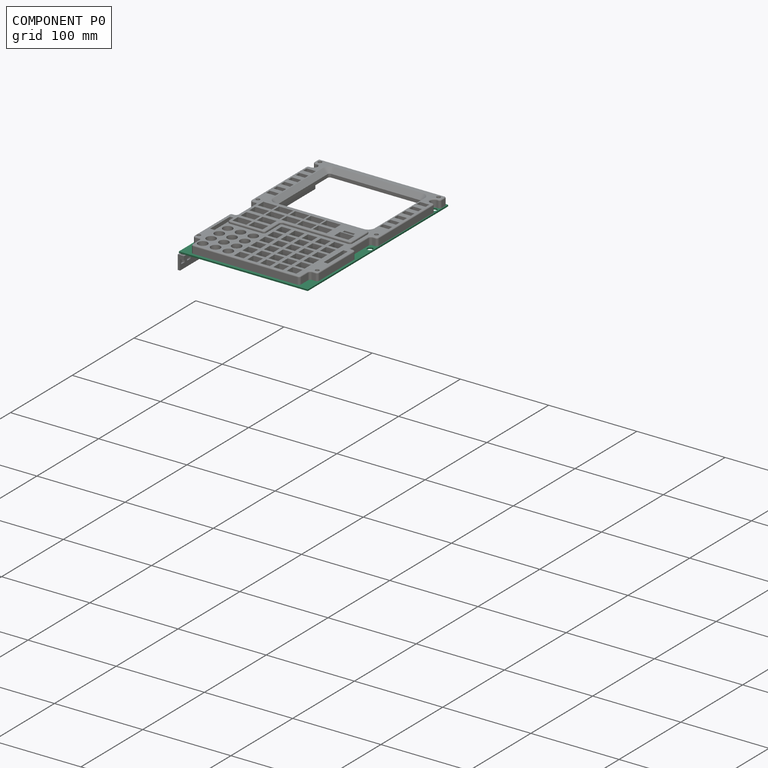
[diagram: component P0 — assembled]
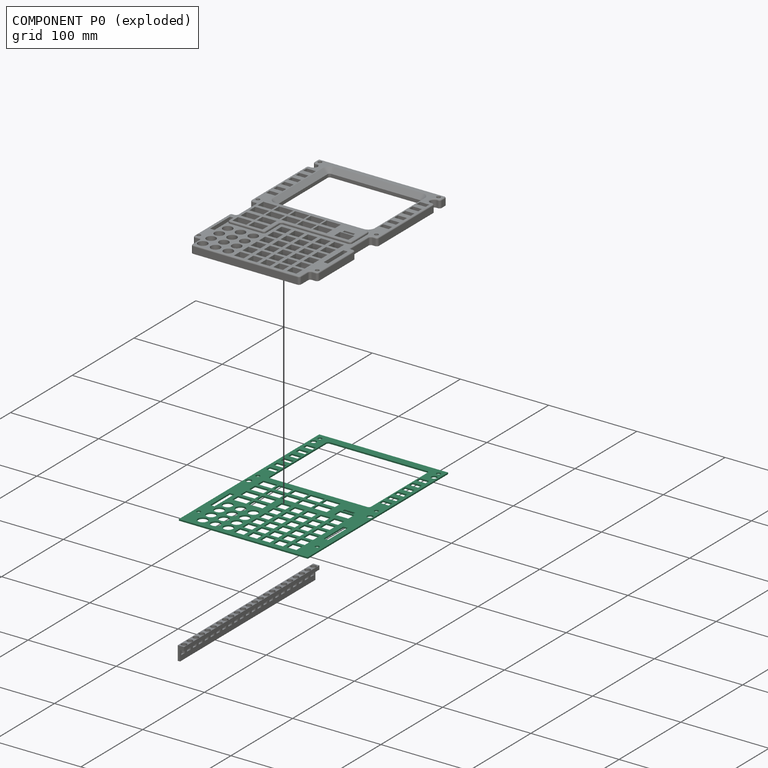
[diagram: component P0 — exploded]
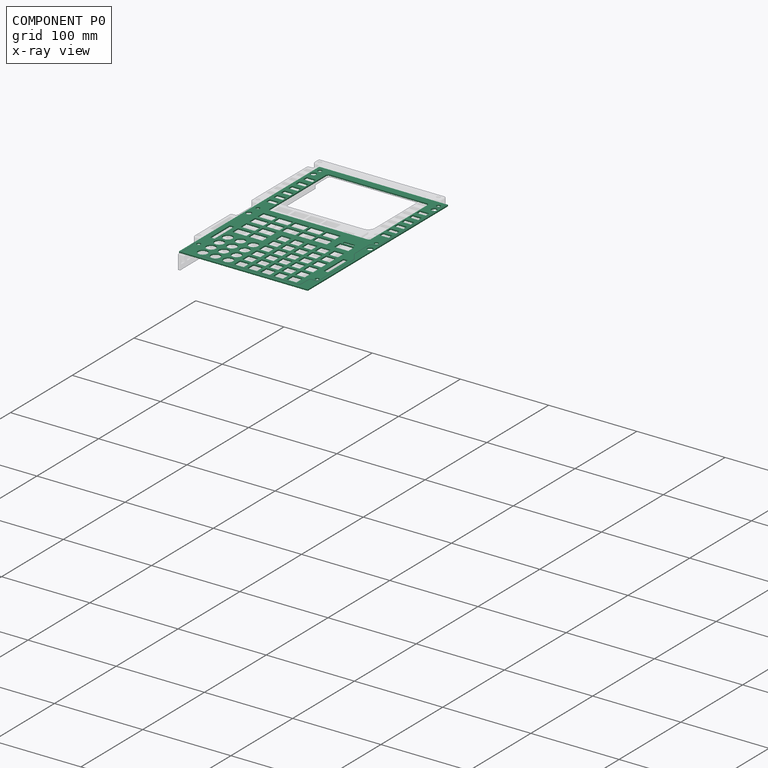
[diagram: component P0 — x-ray view]
COMPONENT P0 — recipe-attached (CADFS 00706665, mesh-verified: the recipe's output STEP matches this component's geometry to below the mesh-comparison resolution (tessellation chordal tolerance ~0.405 mm)).
Held by: FASTENED mate "Fastened 2" to P1; FASTENED mate "Fastened 1" to P2.
Construction recipe (FeatureScript — the CAD program that rebuilds this solid; sketch coordinates are in the units given by the * unit suffixes, e.g. mm):

FeatureScript 1511;
import(path : "onshape/std/geometry.fs", version : "1511.0");
import(path : "onshape/std/common.fs", version : "1511.0");
const mm = millimeter;
const VERTEX = EntityType.VERTEX;
const EDGE = EntityType.EDGE;
const FACE = EntityType.FACE;
const BODY = EntityType.BODY;
function v(x, y){return vector(x, y);}
function OD(order){return orderDisambiguation(order);}
function OSD(set){return originalSetDisambiguation(set);}
function TD(topology){return topologyDisambiguation(topology);}
function TDD(query){return trueDependencyDisambiguation(query);}
function sQuery(a, b, c) {return sketchEntityQuery(a, b, c);}

annotation { "Feature Type Name" : "Feature", "Feature Type Description" : "" }
export const myFeature = defineFeature(function(context is Context, id is Id, definition is map)
    precondition{}
    {
        {
            var Q0;
            Q0=qCreatedBy(makeId("Top.planeOp"),FACE);
            var sketch = newSketch(context, id + "F0", { "sketchPlane" : qUnion([Q0])});
            skLineSegment(sketch, "E0.bottom", {"start": v(73.07, 113.67) * mm, "end": v(-73.07, 113.67) * mm});
            skLineSegment(sketch, "E0.top", {"start": v(73.07, -113.66) * mm, "end": v(-73.07, -113.66) * mm});
            skLineSegment(sketch, "E0.left", {"start": v(73.07, 113.67) * mm, "end": v(73.07, -113.66) * mm});
            skLineSegment(sketch, "E0.right", {"start": v(-73.07, 113.67) * mm, "end": v(-73.07, -113.66) * mm});
            skPoint(sketch, "E0.middle", {"position": v(0, 0) * mm});
            skLineSegment(sketch, "E1", {"start": v(0, 113.67) * mm, "end": v(0, 111.74) * mm});
            skLineSegment(sketch, "E2", {"start": v(-69.57, 102.01) * mm, "end": v(-68.34, 102.01) * mm});
            skLineSegment(sketch, "E3", {"start": v(-68.34, 93.24) * mm, "end": v(-69.57, 93.24) * mm});
            skLineSegment(sketch, "E4", {"start": v(-72.11, 90.7) * mm, "end": v(-72.11, 2.93) * mm});
            skLineSegment(sketch, "E5", {"start": v(-69.57, 0.4) * mm, "end": v(-66.53, 0.4) * mm});
            skLineSegment(sketch, "E6", {"start": v(-63.99, -2.15) * mm, "end": v(-63.99, -30.43) * mm});
            skLineSegment(sketch, "E7", {"start": v(-66.53, -32.97) * mm, "end": v(-68.15, -32.97) * mm});
            skLineSegment(sketch, "E8", {"start": v(-70.69, -35.51) * mm, "end": v(-70.69, -91.63) * mm});
            skLineSegment(sketch, "E9", {"start": v(-68.15, -94.17) * mm, "end": v(-64.1, -94.17) * mm});
            skLineSegment(sketch, "E10", {"start": v(-61.57, -96.71) * mm, "end": v(-61.57, -107.92) * mm});
            skLineSegment(sketch, "E11", {"start": v(-59.03, -110.46) * mm, "end": v(0, -110.46) * mm});
            skLineSegment(sketch, "E12", {"start": v(-72.11, 110.47) * mm, "end": v(-72.11, 108.94) * mm});
            skLineSegment(sketch, "E13", {"start": v(-70.84, 111.74) * mm, "end": v(-69.31, 111.74) * mm});
            skLineSegment(sketch, "E14", {"start": v(-72.11, 108.94) * mm, "end": v(-72.11, 104.55) * mm});
            skLineSegment(sketch, "E15", {"start": v(-69.31, 111.74) * mm, "end": v(0, 111.74) * mm});
            skPoint(sketch, "E16.visualSharp", {"position": v(-72.11, 111.74) * mm});
            skArc(sketch, "E16.filletArc", {"start": v(-70.84, 111.74) * mm, "mid": v(-71.74, 111.36) * mm, "end": v(-72.11, 110.47) * mm});
            skArc(sketch, "E17", {"start": v(-68.34, 93.24) * mm, "mid": v(-63.95, 97.62) * mm, "end": v(-68.34, 102.01) * mm});
            skPoint(sketch, "E18.visualSharp", {"position": v(-61.57, -110.46) * mm});
            skArc(sketch, "E18.filletArc", {"start": v(-61.57, -107.92) * mm, "mid": v(-60.82, -109.71) * mm, "end": v(-59.03, -110.46) * mm});
            skPoint(sketch, "E19.visualSharp", {"position": v(-61.57, -94.17) * mm});
            skArc(sketch, "E19.filletArc", {"start": v(-61.57, -96.71) * mm, "mid": v(-62.31, -94.92) * mm, "end": v(-64.1, -94.17) * mm});
            skPoint(sketch, "E20.visualSharp", {"position": v(-70.69, -94.17) * mm});
            skArc(sketch, "E20.filletArc", {"start": v(-70.69, -91.63) * mm, "mid": v(-69.94, -93.43) * mm, "end": v(-68.15, -94.17) * mm});
            skPoint(sketch, "E21.visualSharp", {"position": v(-70.69, -32.97) * mm});
            skArc(sketch, "E21.filletArc", {"start": v(-68.15, -32.97) * mm, "mid": v(-69.94, -33.72) * mm, "end": v(-70.69, -35.51) * mm});
            skPoint(sketch, "E22.visualSharp", {"position": v(-63.99, -32.97) * mm});
            skArc(sketch, "E22.filletArc", {"start": v(-66.53, -32.97) * mm, "mid": v(-64.73, -32.23) * mm, "end": v(-63.99, -30.43) * mm});
            skPoint(sketch, "E23.visualSharp", {"position": v(-63.99, 0.4) * mm});
            skArc(sketch, "E23.filletArc", {"start": v(-63.99, -2.15) * mm, "mid": v(-64.73, -0.35) * mm, "end": v(-66.53, 0.4) * mm});
            skPoint(sketch, "E24.visualSharp", {"position": v(-72.11, 0.4) * mm});
            skArc(sketch, "E24.filletArc", {"start": v(-72.11, 2.93) * mm, "mid": v(-71.37, 1.14) * mm, "end": v(-69.57, 0.4) * mm});
            skPoint(sketch, "E25.visualSharp", {"position": v(-72.11, 102.01) * mm});
            skArc(sketch, "E25.filletArc", {"start": v(-72.11, 104.55) * mm, "mid": v(-71.37, 102.76) * mm, "end": v(-69.57, 102.01) * mm});
            skPoint(sketch, "E26.visualSharp", {"position": v(-72.11, 93.24) * mm});
            skArc(sketch, "E26.filletArc", {"start": v(-69.57, 93.24) * mm, "mid": v(-71.37, 92.5) * mm, "end": v(-72.11, 90.7) * mm});
            skLineSegment(sketch, "E27.bottom", {"start": v(-59, 22.55) * mm, "end": v(-69.41, 22.55) * mm});
            skLineSegment(sketch, "E27.top", {"start": v(-59, 28.39) * mm, "end": v(-69.41, 28.39) * mm});
            skLineSegment(sketch, "E27.left", {"start": v(-59, 22.55) * mm, "end": v(-59, 28.39) * mm});
            skLineSegment(sketch, "E27.right", {"start": v(-69.41, 22.55) * mm, "end": v(-69.41, 28.39) * mm});
            skPoint(sketch, "E27.middle", {"position": v(-64.2, 25.47) * mm});
            skLineSegment(sketch, "E28.bottom", {"start": v(-59, 34.4) * mm, "end": v(-69.41, 34.4) * mm});
            skLineSegment(sketch, "E28.top", {"start": v(-59, 40.25) * mm, "end": v(-69.41, 40.25) * mm});
            skLineSegment(sketch, "E28.left", {"start": v(-59, 34.4) * mm, "end": v(-59, 40.25) * mm});
            skLineSegment(sketch, "E28.right", {"start": v(-69.41, 34.4) * mm, "end": v(-69.41, 40.25) * mm});
            skPoint(sketch, "E28.middle", {"position": v(-64.2, 37.33) * mm});
            skLineSegment(sketch, "E29.bottom", {"start": v(-59, 46.4) * mm, "end": v(-69.41, 46.4) * mm});
            skLineSegment(sketch, "E29.top", {"start": v(-59, 52.23) * mm, "end": v(-69.41, 52.23) * mm});
            skLineSegment(sketch, "E29.left", {"start": v(-59, 46.4) * mm, "end": v(-59, 52.23) * mm});
            skLineSegment(sketch, "E29.right", {"start": v(-69.41, 46.4) * mm, "end": v(-69.41, 52.23) * mm});
            skPoint(sketch, "E29.middle", {"position": v(-64.2, 49.31) * mm});
            skLineSegment(sketch, "E30.bottom", {"start": v(-59, 58.39) * mm, "end": v(-69.42, 58.39) * mm});
            skLineSegment(sketch, "E30.top", {"start": v(-59, 64.26) * mm, "end": v(-69.42, 64.26) * mm});
            skLineSegment(sketch, "E30.left", {"start": v(-59, 58.39) * mm, "end": v(-59, 64.26) * mm});
            skLineSegment(sketch, "E30.right", {"start": v(-69.42, 58.39) * mm, "end": v(-69.42, 64.26) * mm});
            skPoint(sketch, "E30.middle", {"position": v(-64.2, 61.32) * mm});
            skLineSegment(sketch, "E31.bottom", {"start": v(-59, 70.4) * mm, "end": v(-69.42, 70.4) * mm});
            skLineSegment(sketch, "E31.top", {"start": v(-59, 76.26) * mm, "end": v(-69.42, 76.26) * mm});
            skLineSegment(sketch, "E31.left", {"start": v(-59, 70.4) * mm, "end": v(-59, 76.26) * mm});
            skLineSegment(sketch, "E31.right", {"start": v(-69.42, 70.4) * mm, "end": v(-69.42, 76.26) * mm});
            skPoint(sketch, "E31.middle", {"position": v(-64.2, 73.33) * mm});
            skLineSegment(sketch, "E32.bottom", {"start": v(-59, 82.37) * mm, "end": v(-69.42, 82.37) * mm});
            skLineSegment(sketch, "E32.top", {"start": v(-59, 88.2) * mm, "end": v(-69.42, 88.2) * mm});
            skLineSegment(sketch, "E32.left", {"start": v(-59, 82.37) * mm, "end": v(-59, 88.2) * mm});
            skLineSegment(sketch, "E32.right", {"start": v(-69.42, 82.37) * mm, "end": v(-69.42, 88.2) * mm});
            skPoint(sketch, "E32.middle", {"position": v(-64.2, 85.29) * mm});
            skLineSegment(sketch, "E33", {"start": v(0, 100.27) * mm, "end": v(-50.04, 100.27) * mm});
            skLineSegment(sketch, "E34", {"start": v(-52.58, 97.73) * mm, "end": v(-52.58, 17.05) * mm});
            skLineSegment(sketch, "E35", {"start": v(-50.04, 14.51) * mm, "end": v(0, 14.51) * mm});
            skPoint(sketch, "E36.visualSharp", {"position": v(-52.58, 14.51) * mm});
            skArc(sketch, "E36.filletArc", {"start": v(-52.58, 17.05) * mm, "mid": v(-51.83, 15.26) * mm, "end": v(-50.04, 14.51) * mm});
            skPoint(sketch, "E37.visualSharp", {"position": v(-52.58, 100.27) * mm});
            skArc(sketch, "E37.filletArc", {"start": v(-50.04, 100.27) * mm, "mid": v(-51.83, 99.53) * mm, "end": v(-52.58, 97.73) * mm});
            skLineSegment(sketch, "E38", {"start": v(0, 105.03) * mm, "end": v(-54.96, 105.03) * mm});
            skLineSegment(sketch, "E39", {"start": v(-57.5, 102.49) * mm, "end": v(-57.5, 11.14) * mm});
            skLineSegment(sketch, "E40", {"start": v(-54.96, 8.6) * mm, "end": v(0, 8.6) * mm});
            skLineSegment(sketch, "E41.MirrorCS", {"start": v(59.03, -110.46) * mm, "end": v(0, -110.46) * mm});
            skArc(sketch, "E42.MirrorCS", {"start": v(61.57, -107.92) * mm, "mid": v(60.82, -109.71) * mm, "end": v(59.03, -110.46) * mm});
            skLineSegment(sketch, "E43.MirrorCS", {"start": v(61.57, -96.71) * mm, "end": v(61.57, -107.92) * mm});
            skArc(sketch, "E44.MirrorCS", {"start": v(61.57, -96.71) * mm, "mid": v(62.31, -94.92) * mm, "end": v(64.1, -94.17) * mm});
            skLineSegment(sketch, "E45.MirrorCS", {"start": v(68.15, -94.17) * mm, "end": v(64.1, -94.17) * mm});
            skArc(sketch, "E46.MirrorCS", {"start": v(70.69, -91.63) * mm, "mid": v(69.94, -93.43) * mm, "end": v(68.15, -94.17) * mm});
            skLineSegment(sketch, "E47.MirrorCS", {"start": v(70.69, -35.51) * mm, "end": v(70.69, -91.63) * mm});
            skArc(sketch, "E48.MirrorCS", {"start": v(68.15, -32.97) * mm, "mid": v(69.94, -33.72) * mm, "end": v(70.69, -35.51) * mm});
            skLineSegment(sketch, "E49.MirrorCS", {"start": v(66.53, -32.97) * mm, "end": v(68.15, -32.97) * mm});
            skArc(sketch, "E50.MirrorCS", {"start": v(66.53, -32.97) * mm, "mid": v(64.73, -32.23) * mm, "end": v(63.99, -30.43) * mm});
            skLineSegment(sketch, "E51.MirrorCS", {"start": v(63.99, -2.15) * mm, "end": v(63.99, -30.43) * mm});
            skArc(sketch, "E52.MirrorCS", {"start": v(63.99, -2.15) * mm, "mid": v(64.73, -0.35) * mm, "end": v(66.53, 0.4) * mm});
            skLineSegment(sketch, "E53.MirrorCS", {"start": v(69.57, 0.4) * mm, "end": v(66.53, 0.4) * mm});
            skArc(sketch, "E54.MirrorCS", {"start": v(72.11, 2.93) * mm, "mid": v(71.37, 1.14) * mm, "end": v(69.57, 0.4) * mm});
            skLineSegment(sketch, "E55.MirrorCS", {"start": v(72.11, 90.7) * mm, "end": v(72.11, 2.93) * mm});
            skLineSegment(sketch, "E56.MirrorCS", {"start": v(69.41, 22.55) * mm, "end": v(69.41, 28.39) * mm});
            skLineSegment(sketch, "E57.MirrorCS", {"start": v(59, 22.55) * mm, "end": v(69.41, 22.55) * mm});
            skLineSegment(sketch, "E58.MirrorCS", {"start": v(59, 22.55) * mm, "end": v(59, 28.39) * mm});
            skLineSegment(sketch, "E59.MirrorCS", {"start": v(59, 28.39) * mm, "end": v(69.41, 28.39) * mm});
            skLineSegment(sketch, "E60.MirrorCS", {"start": v(59, 34.4) * mm, "end": v(69.41, 34.4) * mm});
            skLineSegment(sketch, "E61.MirrorCS", {"start": v(59, 34.4) * mm, "end": v(59, 40.25) * mm});
            skLineSegment(sketch, "E62.MirrorCS", {"start": v(59, 40.25) * mm, "end": v(69.41, 40.25) * mm});
            skLineSegment(sketch, "E63.MirrorCS", {"start": v(69.41, 34.4) * mm, "end": v(69.41, 40.25) * mm});
            skLineSegment(sketch, "E64.MirrorCS", {"start": v(59, 46.4) * mm, "end": v(69.41, 46.4) * mm});
            skLineSegment(sketch, "E65.MirrorCS", {"start": v(59, 46.4) * mm, "end": v(59, 52.23) * mm});
            skLineSegment(sketch, "E66.MirrorCS", {"start": v(59, 52.23) * mm, "end": v(69.41, 52.23) * mm});
            skLineSegment(sketch, "E67.MirrorCS", {"start": v(69.41, 46.4) * mm, "end": v(69.41, 52.23) * mm});
            skLineSegment(sketch, "E68.MirrorCS", {"start": v(59, 58.39) * mm, "end": v(69.42, 58.39) * mm});
            skLineSegment(sketch, "E69.MirrorCS", {"start": v(69.42, 58.39) * mm, "end": v(69.42, 64.26) * mm});
            skLineSegment(sketch, "E70.MirrorCS", {"start": v(59, 64.26) * mm, "end": v(69.42, 64.26) * mm});
            skLineSegment(sketch, "E71.MirrorCS", {"start": v(59, 58.39) * mm, "end": v(59, 64.26) * mm});
            skLineSegment(sketch, "E72.MirrorCS", {"start": v(59, 70.4) * mm, "end": v(69.42, 70.4) * mm});
            skLineSegment(sketch, "E73.MirrorCS", {"start": v(69.42, 70.4) * mm, "end": v(69.42, 76.26) * mm});
            skLineSegment(sketch, "E74.MirrorCS", {"start": v(59, 76.26) * mm, "end": v(69.42, 76.26) * mm});
            skLineSegment(sketch, "E75.MirrorCS", {"start": v(59, 70.4) * mm, "end": v(59, 76.26) * mm});
            skLineSegment(sketch, "E76.MirrorCS", {"start": v(59, 82.37) * mm, "end": v(69.42, 82.37) * mm});
            skLineSegment(sketch, "E77.MirrorCS", {"start": v(69.42, 82.37) * mm, "end": v(69.42, 88.2) * mm});
            skLineSegment(sketch, "E78.MirrorCS", {"start": v(59, 88.2) * mm, "end": v(69.42, 88.2) * mm});
            skLineSegment(sketch, "E79.MirrorCS", {"start": v(59, 82.37) * mm, "end": v(59, 88.2) * mm});
            skArc(sketch, "E80.MirrorCS", {"start": v(69.57, 93.24) * mm, "mid": v(71.37, 92.5) * mm, "end": v(72.11, 90.7) * mm});
            skLineSegment(sketch, "E81.MirrorCS", {"start": v(68.34, 93.24) * mm, "end": v(69.57, 93.24) * mm});
            skArc(sketch, "E82.MirrorCS", {"start": v(68.34, 93.24) * mm, "mid": v(63.95, 97.62) * mm, "end": v(68.34, 102.01) * mm});
            skLineSegment(sketch, "E83.MirrorCS", {"start": v(69.57, 102.01) * mm, "end": v(68.34, 102.01) * mm});
            skArc(sketch, "E84.MirrorCS", {"start": v(72.11, 104.55) * mm, "mid": v(71.37, 102.76) * mm, "end": v(69.57, 102.01) * mm});
            skLineSegment(sketch, "E85.MirrorCS", {"start": v(72.11, 108.94) * mm, "end": v(72.11, 104.55) * mm});
            skLineSegment(sketch, "E86.MirrorCS", {"start": v(72.11, 110.47) * mm, "end": v(72.11, 108.94) * mm});
            skArc(sketch, "E87.MirrorCS", {"start": v(70.84, 111.74) * mm, "mid": v(71.74, 111.36) * mm, "end": v(72.11, 110.47) * mm});
            skLineSegment(sketch, "E88.MirrorCS", {"start": v(70.84, 111.74) * mm, "end": v(69.31, 111.74) * mm});
            skLineSegment(sketch, "E89.MirrorCS", {"start": v(69.31, 111.74) * mm, "end": v(0, 111.74) * mm});
            skLineSegment(sketch, "E90.MirrorCS", {"start": v(50.04, 14.51) * mm, "end": v(0, 14.51) * mm});
            skArc(sketch, "E91.MirrorCS", {"start": v(52.58, 17.05) * mm, "mid": v(51.83, 15.26) * mm, "end": v(50.04, 14.51) * mm});
            skLineSegment(sketch, "E92.MirrorCS", {"start": v(52.58, 97.73) * mm, "end": v(52.58, 17.05) * mm});
            skArc(sketch, "E93.MirrorCS", {"start": v(50.04, 100.27) * mm, "mid": v(51.83, 99.53) * mm, "end": v(52.58, 97.73) * mm});
            skLineSegment(sketch, "E94.MirrorCS", {"start": v(0, 100.27) * mm, "end": v(50.04, 100.27) * mm});
            skPoint(sketch, "E95.visualSharp", {"position": v(-57.5, 105.03) * mm});
            skArc(sketch, "E95.filletArc", {"start": v(-54.96, 105.03) * mm, "mid": v(-56.76, 104.28) * mm, "end": v(-57.5, 102.49) * mm});
            skPoint(sketch, "E96.visualSharp", {"position": v(-57.5, 8.6) * mm});
            skArc(sketch, "E96.filletArc", {"start": v(-57.5, 11.14) * mm, "mid": v(-56.76, 9.35) * mm, "end": v(-54.96, 8.6) * mm});
            skLineSegment(sketch, "E97.MirrorCS", {"start": v(54.96, 8.6) * mm, "end": v(0, 8.6) * mm});
            skArc(sketch, "E98.MirrorCS", {"start": v(57.5, 11.14) * mm, "mid": v(56.76, 9.35) * mm, "end": v(54.96, 8.6) * mm});
            skLineSegment(sketch, "E99.MirrorCS", {"start": v(57.5, 102.49) * mm, "end": v(57.5, 11.14) * mm});
            skArc(sketch, "E100.MirrorCS", {"start": v(54.96, 105.03) * mm, "mid": v(56.76, 104.28) * mm, "end": v(57.5, 102.49) * mm});
            skLineSegment(sketch, "E101.MirrorCS", {"start": v(0, 105.03) * mm, "end": v(54.96, 105.03) * mm});
            skCircle(sketch, "E102", {"center": v(-53.9, -61.88) * mm, "radius": 5.37 * mm});
            skCircle(sketch, "E103", {"center": v(-39.39, -61.88) * mm, "radius": 5.37 * mm});
            skCircle(sketch, "E104", {"center": v(-24.9, -61.88) * mm, "radius": 5.37 * mm});
            skCircle(sketch, "E105", {"center": v(-53.9, -75.58) * mm, "radius": 5.37 * mm});
            skCircle(sketch, "E106", {"center": v(-39.39, -75.58) * mm, "radius": 5.37 * mm});
            skCircle(sketch, "E107", {"center": v(-24.9, -75.58) * mm, "radius": 5.37 * mm});
            skCircle(sketch, "E108", {"center": v(-39.39, -88.8) * mm, "radius": 5.37 * mm});
            skCircle(sketch, "E109", {"center": v(-53.9, -88.8) * mm, "radius": 5.37 * mm});
            skCircle(sketch, "E110", {"center": v(-24.9, -88.8) * mm, "radius": 5.37 * mm});
            skCircle(sketch, "E111", {"center": v(-39.39, -102.26) * mm, "radius": 5.37 * mm});
            skCircle(sketch, "E112", {"center": v(-24.9, -102.26) * mm, "radius": 5.37 * mm});
            skCircle(sketch, "E113", {"center": v(-53.9, -102.26) * mm, "radius": 5.37 * mm});
            skLineSegment(sketch, "E114.bottom", {"start": v(-4.04, -29.98) * mm, "end": v(-15.02, -29.98) * mm});
            skLineSegment(sketch, "E114.top", {"start": v(-4.04, -39.93) * mm, "end": v(-15.02, -39.93) * mm});
            skLineSegment(sketch, "E114.left", {"start": v(-4.04, -29.98) * mm, "end": v(-4.04, -39.93) * mm});
            skLineSegment(sketch, "E114.right", {"start": v(-15.02, -29.98) * mm, "end": v(-15.02, -39.93) * mm});
            skPoint(sketch, "E114.middle", {"position": v(-9.53, -34.95) * mm});
            skLineSegment(sketch, "E115.bottom", {"start": v(-4.04, -43.44) * mm, "end": v(-15.02, -43.44) * mm});
            skLineSegment(sketch, "E115.top", {"start": v(-4.04, -53.4) * mm, "end": v(-15.02, -53.4) * mm});
            skLineSegment(sketch, "E115.left", {"start": v(-4.04, -43.44) * mm, "end": v(-4.04, -53.4) * mm});
            skLineSegment(sketch, "E115.right", {"start": v(-15.02, -43.44) * mm, "end": v(-15.02, -53.4) * mm});
            skPoint(sketch, "E115.middle", {"position": v(-9.53, -48.42) * mm});
            skLineSegment(sketch, "E116.bottom", {"start": v(-4.04, -66.85) * mm, "end": v(-15.02, -66.85) * mm});
            skLineSegment(sketch, "E116.top", {"start": v(-4.04, -56.9) * mm, "end": v(-15.02, -56.9) * mm});
            skLineSegment(sketch, "E116.left", {"start": v(-4.04, -66.85) * mm, "end": v(-4.04, -56.9) * mm});
            skLineSegment(sketch, "E116.right", {"start": v(-15.02, -66.85) * mm, "end": v(-15.02, -56.9) * mm});
            skPoint(sketch, "E116.middle", {"position": v(-9.53, -61.88) * mm});
            skLineSegment(sketch, "E117.bottom", {"start": v(-4.04, -80.32) * mm, "end": v(-15.02, -80.32) * mm});
            skLineSegment(sketch, "E117.top", {"start": v(-4.04, -70.36) * mm, "end": v(-15.02, -70.36) * mm});
            skLineSegment(sketch, "E117.left", {"start": v(-4.04, -80.32) * mm, "end": v(-4.04, -70.36) * mm});
            skLineSegment(sketch, "E117.right", {"start": v(-15.02, -80.32) * mm, "end": v(-15.02, -70.36) * mm});
            skPoint(sketch, "E117.middle", {"position": v(-9.53, -75.34) * mm});
            skLineSegment(sketch, "E118.bottom", {"start": v(-4.04, -93.79) * mm, "end": v(-15.02, -93.79) * mm});
            skLineSegment(sketch, "E118.top", {"start": v(-4.04, -83.82) * mm, "end": v(-15.02, -83.82) * mm});
            skLineSegment(sketch, "E118.left", {"start": v(-4.04, -93.79) * mm, "end": v(-4.04, -83.82) * mm});
            skLineSegment(sketch, "E118.right", {"start": v(-15.02, -93.79) * mm, "end": v(-15.02, -83.82) * mm});
            skPoint(sketch, "E118.middle", {"position": v(-9.53, -88.8) * mm});
            skLineSegment(sketch, "E119.bottom", {"start": v(-4.04, -97.28) * mm, "end": v(-15.02, -97.28) * mm});
            skLineSegment(sketch, "E119.top", {"start": v(-4.04, -107.24) * mm, "end": v(-15.02, -107.24) * mm});
            skLineSegment(sketch, "E119.left", {"start": v(-4.04, -97.28) * mm, "end": v(-4.04, -107.24) * mm});
            skLineSegment(sketch, "E119.right", {"start": v(-15.02, -97.28) * mm, "end": v(-15.02, -107.24) * mm});
            skPoint(sketch, "E119.middle", {"position": v(-9.53, -102.26) * mm});
            skLineSegment(sketch, "E120.bottom", {"start": v(10.97, -29.98) * mm, "end": v(0, -29.98) * mm});
            skLineSegment(sketch, "E120.top", {"start": v(10.97, -39.93) * mm, "end": v(0, -39.93) * mm});
            skLineSegment(sketch, "E120.left", {"start": v(10.97, -29.98) * mm, "end": v(10.97, -39.93) * mm});
            skLineSegment(sketch, "E120.right", {"start": v(0, -29.98) * mm, "end": v(0, -39.93) * mm});
            skLineSegment(sketch, "E121.bottom", {"start": v(10.97, -43.44) * mm, "end": v(0, -43.44) * mm});
            skLineSegment(sketch, "E121.top", {"start": v(10.97, -53.4) * mm, "end": v(0, -53.4) * mm});
            skLineSegment(sketch, "E121.left", {"start": v(10.97, -43.44) * mm, "end": v(10.97, -53.4) * mm});
            skLineSegment(sketch, "E121.right", {"start": v(0, -43.44) * mm, "end": v(0, -53.4) * mm});
            skLineSegment(sketch, "E122.bottom", {"start": v(10.97, -66.85) * mm, "end": v(0, -66.85) * mm});
            skLineSegment(sketch, "E122.top", {"start": v(10.97, -56.9) * mm, "end": v(0, -56.9) * mm});
            skLineSegment(sketch, "E122.left", {"start": v(10.97, -66.85) * mm, "end": v(10.97, -56.9) * mm});
            skLineSegment(sketch, "E122.right", {"start": v(0, -66.85) * mm, "end": v(0, -56.9) * mm});
            skLineSegment(sketch, "E123.bottom", {"start": v(10.97, -80.32) * mm, "end": v(0, -80.32) * mm});
            skLineSegment(sketch, "E123.top", {"start": v(10.97, -70.36) * mm, "end": v(0, -70.36) * mm});
            skLineSegment(sketch, "E123.left", {"start": v(10.97, -80.32) * mm, "end": v(10.97, -70.36) * mm});
            skLineSegment(sketch, "E123.right", {"start": v(0, -80.32) * mm, "end": v(0, -70.36) * mm});
            skLineSegment(sketch, "E124.bottom", {"start": v(10.97, -93.79) * mm, "end": v(0, -93.79) * mm});
            skLineSegment(sketch, "E124.top", {"start": v(10.97, -83.82) * mm, "end": v(0, -83.82) * mm});
            skLineSegment(sketch, "E124.left", {"start": v(10.97, -93.79) * mm, "end": v(10.97, -83.82) * mm});
            skLineSegment(sketch, "E124.right", {"start": v(0, -93.79) * mm, "end": v(0, -83.82) * mm});
            skLineSegment(sketch, "E125.bottom", {"start": v(10.97, -97.28) * mm, "end": v(0, -97.28) * mm});
            skLineSegment(sketch, "E125.top", {"start": v(10.97, -107.24) * mm, "end": v(0, -107.24) * mm});
            skLineSegment(sketch, "E125.left", {"start": v(10.97, -97.28) * mm, "end": v(10.97, -107.24) * mm});
            skLineSegment(sketch, "E125.right", {"start": v(0, -97.28) * mm, "end": v(0, -107.24) * mm});
            skLineSegment(sketch, "E126.bottom", {"start": v(25.63, -29.98) * mm, "end": v(14.65, -29.98) * mm});
            skLineSegment(sketch, "E126.top", {"start": v(25.63, -39.93) * mm, "end": v(14.65, -39.93) * mm});
            skLineSegment(sketch, "E126.left", {"start": v(25.63, -29.98) * mm, "end": v(25.63, -39.93) * mm});
            skLineSegment(sketch, "E126.right", {"start": v(14.65, -29.98) * mm, "end": v(14.65, -39.93) * mm});
            skLineSegment(sketch, "E127.bottom", {"start": v(25.63, -43.44) * mm, "end": v(14.65, -43.44) * mm});
            skLineSegment(sketch, "E127.top", {"start": v(25.63, -53.4) * mm, "end": v(14.65, -53.4) * mm});
            skLineSegment(sketch, "E127.left", {"start": v(25.63, -43.44) * mm, "end": v(25.63, -53.4) * mm});
            skLineSegment(sketch, "E127.right", {"start": v(14.65, -43.44) * mm, "end": v(14.65, -53.4) * mm});
            skLineSegment(sketch, "E128.bottom", {"start": v(25.63, -66.85) * mm, "end": v(14.65, -66.85) * mm});
            skLineSegment(sketch, "E128.top", {"start": v(25.63, -56.9) * mm, "end": v(14.65, -56.9) * mm});
            skLineSegment(sketch, "E128.left", {"start": v(25.63, -66.85) * mm, "end": v(25.63, -56.9) * mm});
            skLineSegment(sketch, "E128.right", {"start": v(14.65, -66.85) * mm, "end": v(14.65, -56.9) * mm});
            skLineSegment(sketch, "E129.bottom", {"start": v(25.63, -80.32) * mm, "end": v(14.65, -80.32) * mm});
            skLineSegment(sketch, "E129.top", {"start": v(25.63, -70.36) * mm, "end": v(14.65, -70.36) * mm});
            skLineSegment(sketch, "E129.left", {"start": v(25.63, -80.32) * mm, "end": v(25.63, -70.36) * mm});
            skLineSegment(sketch, "E129.right", {"start": v(14.65, -80.32) * mm, "end": v(14.65, -70.36) * mm});
            skLineSegment(sketch, "E130.bottom", {"start": v(25.63, -93.79) * mm, "end": v(14.65, -93.79) * mm});
            skLineSegment(sketch, "E130.top", {"start": v(25.63, -83.82) * mm, "end": v(14.65, -83.82) * mm});
            skLineSegment(sketch, "E130.left", {"start": v(25.63, -93.79) * mm, "end": v(25.63, -83.82) * mm});
            skLineSegment(sketch, "E130.right", {"start": v(14.65, -93.79) * mm, "end": v(14.65, -83.82) * mm});
            skLineSegment(sketch, "E131.bottom", {"start": v(25.63, -97.28) * mm, "end": v(14.65, -97.28) * mm});
            skLineSegment(sketch, "E131.top", {"start": v(25.63, -107.24) * mm, "end": v(14.65, -107.24) * mm});
            skLineSegment(sketch, "E131.left", {"start": v(25.63, -97.28) * mm, "end": v(25.63, -107.24) * mm});
            skLineSegment(sketch, "E131.right", {"start": v(14.65, -97.28) * mm, "end": v(14.65, -107.24) * mm});
            skLineSegment(sketch, "E132.bottom", {"start": v(40.46, -29.98) * mm, "end": v(29.49, -29.98) * mm});
            skLineSegment(sketch, "E132.top", {"start": v(40.46, -39.93) * mm, "end": v(29.49, -39.93) * mm});
            skLineSegment(sketch, "E132.left", {"start": v(40.46, -29.98) * mm, "end": v(40.46, -39.93) * mm});
            skLineSegment(sketch, "E132.right", {"start": v(29.49, -29.98) * mm, "end": v(29.49, -39.93) * mm});
            skLineSegment(sketch, "E133.bottom", {"start": v(40.46, -43.44) * mm, "end": v(29.49, -43.44) * mm});
            skLineSegment(sketch, "E133.top", {"start": v(40.46, -53.4) * mm, "end": v(29.49, -53.4) * mm});
            skLineSegment(sketch, "E133.left", {"start": v(40.46, -43.44) * mm, "end": v(40.46, -53.4) * mm});
            skLineSegment(sketch, "E133.right", {"start": v(29.49, -43.44) * mm, "end": v(29.49, -53.4) * mm});
            skLineSegment(sketch, "E134.bottom", {"start": v(40.46, -66.85) * mm, "end": v(29.49, -66.85) * mm});
            skLineSegment(sketch, "E134.top", {"start": v(40.46, -56.9) * mm, "end": v(29.49, -56.9) * mm});
            skLineSegment(sketch, "E134.left", {"start": v(40.46, -66.85) * mm, "end": v(40.46, -56.9) * mm});
            skLineSegment(sketch, "E134.right", {"start": v(29.49, -66.85) * mm, "end": v(29.49, -56.9) * mm});
            skLineSegment(sketch, "E135.bottom", {"start": v(40.46, -80.32) * mm, "end": v(29.49, -80.32) * mm});
            skLineSegment(sketch, "E135.top", {"start": v(40.46, -70.36) * mm, "end": v(29.49, -70.36) * mm});
            skLineSegment(sketch, "E135.left", {"start": v(40.46, -80.32) * mm, "end": v(40.46, -70.36) * mm});
            skLineSegment(sketch, "E135.right", {"start": v(29.49, -80.32) * mm, "end": v(29.49, -70.36) * mm});
            skLineSegment(sketch, "E136.bottom", {"start": v(40.46, -93.79) * mm, "end": v(29.49, -93.79) * mm});
            skLineSegment(sketch, "E136.top", {"start": v(40.46, -83.82) * mm, "end": v(29.49, -83.82) * mm});
            skLineSegment(sketch, "E136.left", {"start": v(40.46, -93.79) * mm, "end": v(40.46, -83.82) * mm});
            skLineSegment(sketch, "E136.right", {"start": v(29.49, -93.79) * mm, "end": v(29.49, -83.82) * mm});
            skLineSegment(sketch, "E137.bottom", {"start": v(40.46, -97.28) * mm, "end": v(29.49, -97.28) * mm});
            skLineSegment(sketch, "E137.top", {"start": v(40.46, -107.24) * mm, "end": v(29.49, -107.24) * mm});
            skLineSegment(sketch, "E137.left", {"start": v(40.46, -97.28) * mm, "end": v(40.46, -107.24) * mm});
            skLineSegment(sketch, "E137.right", {"start": v(29.49, -97.28) * mm, "end": v(29.49, -107.24) * mm});
            skLineSegment(sketch, "E138.bottom", {"start": v(55.3, -29.4) * mm, "end": v(44.32, -29.4) * mm});
            skLineSegment(sketch, "E138.top", {"start": v(55.3, -39.36) * mm, "end": v(44.32, -39.36) * mm});
            skLineSegment(sketch, "E138.left", {"start": v(55.3, -29.4) * mm, "end": v(55.3, -39.36) * mm});
            skLineSegment(sketch, "E138.right", {"start": v(44.32, -29.4) * mm, "end": v(44.32, -39.36) * mm});
            skLineSegment(sketch, "E139.bottom", {"start": v(55.3, -42.87) * mm, "end": v(44.32, -42.87) * mm});
            skLineSegment(sketch, "E139.top", {"start": v(55.3, -52.82) * mm, "end": v(44.32, -52.82) * mm});
            skLineSegment(sketch, "E139.left", {"start": v(55.3, -42.87) * mm, "end": v(55.3, -52.82) * mm});
            skLineSegment(sketch, "E139.right", {"start": v(44.32, -42.87) * mm, "end": v(44.32, -52.82) * mm});
            skLineSegment(sketch, "E140.bottom", {"start": v(55.3, -66.28) * mm, "end": v(44.32, -66.28) * mm});
            skLineSegment(sketch, "E140.top", {"start": v(55.3, -56.33) * mm, "end": v(44.32, -56.33) * mm});
            skLineSegment(sketch, "E140.left", {"start": v(55.3, -66.28) * mm, "end": v(55.3, -56.33) * mm});
            skLineSegment(sketch, "E140.right", {"start": v(44.32, -66.28) * mm, "end": v(44.32, -56.33) * mm});
            skLineSegment(sketch, "E141.bottom", {"start": v(55.3, -79.75) * mm, "end": v(44.32, -79.75) * mm});
            skLineSegment(sketch, "E141.top", {"start": v(55.3, -69.79) * mm, "end": v(44.32, -69.79) * mm});
            skLineSegment(sketch, "E141.left", {"start": v(55.3, -79.75) * mm, "end": v(55.3, -69.79) * mm});
            skLineSegment(sketch, "E141.right", {"start": v(44.32, -79.75) * mm, "end": v(44.32, -69.79) * mm});
            skLineSegment(sketch, "E142.bottom", {"start": v(55.3, -93.21) * mm, "end": v(44.32, -93.21) * mm});
            skLineSegment(sketch, "E142.top", {"start": v(55.3, -83.25) * mm, "end": v(44.32, -83.25) * mm});
            skLineSegment(sketch, "E142.left", {"start": v(55.3, -93.21) * mm, "end": v(55.3, -83.25) * mm});
            skLineSegment(sketch, "E142.right", {"start": v(44.32, -93.21) * mm, "end": v(44.32, -83.25) * mm});
            skLineSegment(sketch, "E143.bottom", {"start": v(55.3, -96.71) * mm, "end": v(44.32, -96.71) * mm});
            skLineSegment(sketch, "E143.top", {"start": v(55.3, -106.67) * mm, "end": v(44.32, -106.67) * mm});
            skLineSegment(sketch, "E143.left", {"start": v(55.3, -96.71) * mm, "end": v(55.3, -106.67) * mm});
            skLineSegment(sketch, "E143.right", {"start": v(44.32, -96.71) * mm, "end": v(44.32, -106.67) * mm});
            skLineSegment(sketch, "E144.bottom", {"start": v(61.61, -39.56) * mm, "end": v(66.54, -39.56) * mm});
            skLineSegment(sketch, "E144.top", {"start": v(61.61, -71.64) * mm, "end": v(66.54, -71.64) * mm});
            skLineSegment(sketch, "E144.left", {"start": v(61.61, -39.56) * mm, "end": v(61.61, -71.64) * mm});
            skLineSegment(sketch, "E144.right", {"start": v(66.54, -39.56) * mm, "end": v(66.54, -71.64) * mm});
            skLineSegment(sketch, "E145.bottom", {"start": v(-67, -39.56) * mm, "end": v(-62.07, -39.56) * mm});
            skLineSegment(sketch, "E145.top", {"start": v(-67, -71.64) * mm, "end": v(-62.07, -71.64) * mm});
            skLineSegment(sketch, "E145.left", {"start": v(-67, -39.56) * mm, "end": v(-67, -71.64) * mm});
            skLineSegment(sketch, "E145.right", {"start": v(-62.07, -39.56) * mm, "end": v(-62.07, -71.64) * mm});
            skLineSegment(sketch, "E146", {"start": v(-58.24, 4.59) * mm, "end": v(0, 4.59) * mm});
            skLineSegment(sketch, "E147", {"start": v(57.5, 4.59) * mm, "end": v(0, 4.59) * mm});
            skLineSegment(sketch, "E148", {"start": v(-60.78, -49.72) * mm, "end": v(-60.78, 2.05) * mm});
            skLineSegment(sketch, "E149", {"start": v(-21.53, -52.26) * mm, "end": v(-58.24, -52.26) * mm});
            skLineSegment(sketch, "E150", {"start": v(-19, -28.14) * mm, "end": v(-19, -49.72) * mm});
            skLineSegment(sketch, "E151", {"start": v(-16.45, -25.6) * mm, "end": v(57.5, -25.6) * mm});
            skLineSegment(sketch, "E152", {"start": v(60.04, -23.06) * mm, "end": v(60.04, 2.05) * mm});
            skPoint(sketch, "E153.visualSharp", {"position": v(60.04, 4.59) * mm});
            skArc(sketch, "E153.filletArc", {"start": v(60.04, 2.05) * mm, "mid": v(59.3, 3.85) * mm, "end": v(57.5, 4.59) * mm});
            skPoint(sketch, "E154.visualSharp", {"position": v(60.04, -25.6) * mm});
            skArc(sketch, "E154.filletArc", {"start": v(57.5, -25.6) * mm, "mid": v(59.3, -24.86) * mm, "end": v(60.04, -23.06) * mm});
            skPoint(sketch, "E155.visualSharp", {"position": v(-60.78, 4.59) * mm});
            skArc(sketch, "E155.filletArc", {"start": v(-58.24, 4.59) * mm, "mid": v(-60.03, 3.85) * mm, "end": v(-60.78, 2.05) * mm});
            skPoint(sketch, "E156.visualSharp", {"position": v(-60.78, -52.26) * mm});
            skArc(sketch, "E156.filletArc", {"start": v(-60.78, -49.72) * mm, "mid": v(-60.03, -51.52) * mm, "end": v(-58.24, -52.26) * mm});
            skPoint(sketch, "E157.visualSharp", {"position": v(-19, -52.26) * mm});
            skArc(sketch, "E157.filletArc", {"start": v(-21.53, -52.26) * mm, "mid": v(-19.74, -51.52) * mm, "end": v(-19, -49.72) * mm});
            skPoint(sketch, "E158.visualSharp", {"position": v(-19, -25.6) * mm});
            skArc(sketch, "E158.filletArc", {"start": v(-16.45, -25.6) * mm, "mid": v(-18.25, -26.35) * mm, "end": v(-19, -28.14) * mm});
            skLineSegment(sketch, "E159", {"start": v(-57.18, -8.79) * mm, "end": v(-57.18, 0.6) * mm});
            skLineSegment(sketch, "E160", {"start": v(-41.34, 0.6) * mm, "end": v(-57.18, 0.6) * mm});
            skLineSegment(sketch, "E161", {"start": v(-41.34, -8.79) * mm, "end": v(-57.18, -8.79) * mm});
            skLineSegment(sketch, "E162", {"start": v(-41.34, 0.6) * mm, "end": v(-41.34, -8.79) * mm});
            skLineSegment(sketch, "E163", {"start": v(-57.18, -22.24) * mm, "end": v(-57.18, -12.86) * mm});
            skLineSegment(sketch, "E164", {"start": v(-41.34, -12.86) * mm, "end": v(-57.18, -12.86) * mm});
            skLineSegment(sketch, "E165", {"start": v(-41.34, -22.24) * mm, "end": v(-57.18, -22.24) * mm});
            skLineSegment(sketch, "E166", {"start": v(-41.34, -12.86) * mm, "end": v(-41.34, -22.24) * mm});
            skLineSegment(sketch, "E167", {"start": v(-39.13, -8.79) * mm, "end": v(-39.13, 0.6) * mm});
            skLineSegment(sketch, "E168", {"start": v(-23.3, 0.6) * mm, "end": v(-39.13, 0.6) * mm});
            skLineSegment(sketch, "E169", {"start": v(-23.3, -8.79) * mm, "end": v(-39.13, -8.79) * mm});
            skLineSegment(sketch, "E170", {"start": v(-23.3, 0.6) * mm, "end": v(-23.3, -8.79) * mm});
            skLineSegment(sketch, "E171", {"start": v(-39.13, -22.24) * mm, "end": v(-39.13, -12.86) * mm});
            skLineSegment(sketch, "E172", {"start": v(-23.3, -12.86) * mm, "end": v(-39.13, -12.86) * mm});
            skLineSegment(sketch, "E173", {"start": v(-23.3, -22.24) * mm, "end": v(-39.13, -22.24) * mm});
            skLineSegment(sketch, "E174", {"start": v(-23.3, -12.86) * mm, "end": v(-23.3, -22.24) * mm});
            skLineSegment(sketch, "E175", {"start": v(-21.03, -8.79) * mm, "end": v(-21.03, 0.6) * mm});
            skLineSegment(sketch, "E176", {"start": v(-5.18, 0.6) * mm, "end": v(-21.03, 0.6) * mm});
            skLineSegment(sketch, "E177", {"start": v(-5.18, -8.79) * mm, "end": v(-21.03, -8.79) * mm});
            skLineSegment(sketch, "E178", {"start": v(-5.18, 0.6) * mm, "end": v(-5.18, -8.79) * mm});
            skLineSegment(sketch, "E179", {"start": v(-21.03, -22.24) * mm, "end": v(-21.03, -12.86) * mm});
            skLineSegment(sketch, "E180", {"start": v(-5.18, -12.86) * mm, "end": v(-21.03, -12.86) * mm});
            skLineSegment(sketch, "E181", {"start": v(-5.18, -22.24) * mm, "end": v(-21.03, -22.24) * mm});
            skLineSegment(sketch, "E182", {"start": v(-5.18, -12.86) * mm, "end": v(-5.18, -22.24) * mm});
            skLineSegment(sketch, "E183", {"start": v(-3.15, -8.79) * mm, "end": v(-3.15, 0.6) * mm});
            skLineSegment(sketch, "E184", {"start": v(12.69, 0.6) * mm, "end": v(-3.15, 0.6) * mm});
            skLineSegment(sketch, "E185", {"start": v(12.69, -8.79) * mm, "end": v(-3.15, -8.79) * mm});
            skLineSegment(sketch, "E186", {"start": v(12.69, 0.6) * mm, "end": v(12.69, -8.79) * mm});
            skLineSegment(sketch, "E187", {"start": v(-3.15, -22.24) * mm, "end": v(-3.15, -12.86) * mm});
            skLineSegment(sketch, "E188", {"start": v(12.69, -12.86) * mm, "end": v(-3.15, -12.86) * mm});
            skLineSegment(sketch, "E189", {"start": v(12.69, -22.24) * mm, "end": v(-3.15, -22.24) * mm});
            skLineSegment(sketch, "E190", {"start": v(12.69, -12.86) * mm, "end": v(12.69, -22.24) * mm});
            skLineSegment(sketch, "E191", {"start": v(14.65, -8.79) * mm, "end": v(14.65, 0.6) * mm});
            skLineSegment(sketch, "E192", {"start": v(30.5, 0.6) * mm, "end": v(14.65, 0.6) * mm});
            skLineSegment(sketch, "E193", {"start": v(30.5, -8.79) * mm, "end": v(14.65, -8.79) * mm});
            skLineSegment(sketch, "E194", {"start": v(30.5, 0.6) * mm, "end": v(30.5, -8.79) * mm});
            skLineSegment(sketch, "E195", {"start": v(14.65, -22.24) * mm, "end": v(14.65, -12.86) * mm});
            skLineSegment(sketch, "E196", {"start": v(30.5, -12.86) * mm, "end": v(14.65, -12.86) * mm});
            skLineSegment(sketch, "E197", {"start": v(30.5, -22.24) * mm, "end": v(14.65, -22.24) * mm});
            skLineSegment(sketch, "E198", {"start": v(30.5, -12.86) * mm, "end": v(30.5, -22.24) * mm});
            skLineSegment(sketch, "E199", {"start": v(-57.18, -36.33) * mm, "end": v(-57.18, -26.95) * mm});
            skLineSegment(sketch, "E200", {"start": v(-41.34, -26.95) * mm, "end": v(-57.18, -26.95) * mm});
            skLineSegment(sketch, "E201", {"start": v(-41.34, -36.33) * mm, "end": v(-57.18, -36.33) * mm});
            skLineSegment(sketch, "E202", {"start": v(-41.34, -26.95) * mm, "end": v(-41.34, -36.33) * mm});
            skLineSegment(sketch, "E203", {"start": v(-57.18, -49.79) * mm, "end": v(-57.18, -40.4) * mm});
            skLineSegment(sketch, "E204", {"start": v(-41.34, -40.4) * mm, "end": v(-57.18, -40.4) * mm});
            skLineSegment(sketch, "E205", {"start": v(-41.34, -49.79) * mm, "end": v(-57.18, -49.79) * mm});
            skLineSegment(sketch, "E206", {"start": v(-41.34, -40.4) * mm, "end": v(-41.34, -49.79) * mm});
            skLineSegment(sketch, "E207", {"start": v(-38.83, -36.27) * mm, "end": v(-38.83, -26.89) * mm});
            skLineSegment(sketch, "E208", {"start": v(-23, -26.89) * mm, "end": v(-38.83, -26.89) * mm});
            skLineSegment(sketch, "E209", {"start": v(-23, -36.27) * mm, "end": v(-38.83, -36.27) * mm});
            skLineSegment(sketch, "E210", {"start": v(-23, -26.89) * mm, "end": v(-23, -36.27) * mm});
            skLineSegment(sketch, "E211", {"start": v(-38.83, -49.72) * mm, "end": v(-38.83, -40.34) * mm});
            skLineSegment(sketch, "E212", {"start": v(-23, -40.34) * mm, "end": v(-38.83, -40.34) * mm});
            skLineSegment(sketch, "E213", {"start": v(-23, -49.72) * mm, "end": v(-38.83, -49.72) * mm});
            skLineSegment(sketch, "E214", {"start": v(-23, -40.34) * mm, "end": v(-23, -49.72) * mm});
            skLineSegment(sketch, "E215.bottom", {"start": v(39.23, -12.82) * mm, "end": v(55.26, -12.82) * mm});
            skLineSegment(sketch, "E215.top", {"start": v(39.23, -22.56) * mm, "end": v(55.26, -22.56) * mm});
            skLineSegment(sketch, "E215.left", {"start": v(39.23, -12.82) * mm, "end": v(39.23, -22.56) * mm});
            skLineSegment(sketch, "E215.right", {"start": v(55.26, -12.82) * mm, "end": v(55.26, -22.56) * mm});
            skLineSegment(sketch, "E216.bottom", {"start": v(40.96, -8.15) * mm, "end": v(52.9, -8.15) * mm});
            skLineSegment(sketch, "E216.top", {"start": v(40.96, -11.27) * mm, "end": v(52.9, -11.27) * mm});
            skLineSegment(sketch, "E216.left", {"start": v(40.96, -8.15) * mm, "end": v(40.96, -11.27) * mm});
            skLineSegment(sketch, "E216.right", {"start": v(52.9, -8.15) * mm, "end": v(52.9, -11.27) * mm});
            skCircle(sketch, "E217", {"center": v(-67.53, 6.45) * mm, "radius": 2.22 * mm});
            skCircle(sketch, "E218", {"center": v(-67.41, 106.64) * mm, "radius": 2.22 * mm});
            skCircle(sketch, "E219", {"center": v(67, 106.69) * mm, "radius": 2.22 * mm});
            skCircle(sketch, "E220", {"center": v(66.8, 6.35) * mm, "radius": 2.22 * mm});
            skCircle(sketch, "E221", {"center": v(66.82, -89.44) * mm, "radius": 2.23 * mm});
            skCircle(sketch, "E222", {"center": v(-67.53, -89.38) * mm, "radius": 2.22 * mm});
            skCircle(sketch, "E223", {"center": v(68.34, 97.62) * mm, "radius": 3.07 * mm});
            skCircle(sketch, "E224", {"center": v(-68.34, 97.62) * mm, "radius": 3.07 * mm});
            skCircle(sketch, "E225", {"center": v(69.1, -7.12) * mm, "radius": 3.07 * mm});
            skLineSegment(sketch, "E226", {"start": v(68.34, 97.62) * mm, "end": v(-68.34, 97.62) * mm});
            skCircle(sketch, "E227", {"center": v(-68.34, -7.12) * mm, "radius": 3.08 * mm});
            skSolve(sketch);
        }
        {
            var Q0;
            Q0=makeQuery(id+"F0.imprint","IMPRINT",FACE,{"disambiguationData":[TD([[makeQuery(id+"F0.imprint","IMPRINT",EDGE,{"derivedFrom":sQuery(id+"F0.wireOp",EDGE,"E0.top")}),-1.0]])]});
            var Q1;
            Q1=makeQuery(id+"F0.imprint","IMPRINT",FACE,{"disambiguationData":[TD([[makeQuery(id+"F0.imprint","IMPRINT",EDGE,{"derivedFrom":sQuery(id+"F0.wireOp",EDGE,"E2")}),1.0]])]});
            var Q2;
            Q2=makeQuery(id+"F0.imprint","IMPRINT",FACE,{"disambiguationData":[TD([[makeQuery(id+"F0.imprint","IMPRINT",EDGE,{"derivedFrom":sQuery(id+"F0.wireOp",EDGE,"E146")}),-1.0]])]});
            var Q3;
            {var subQ4=sQuery(id+"F0.wireOp",EDGE,"E3");Q3=makeQuery(id+"F0.imprint","IMPRINT",FACE,{"disambiguationData":[TD([[makeQuery(id+"F0.imprint","IMPRINT",EDGE,{"derivedFrom":subQ4}),1.0]])]});}
            extrude(context, id + "F1", {"entities" : qUnion([Q0, Q1, Q2, Q3]), "depth" : 1.59 * mm});
        }
    });
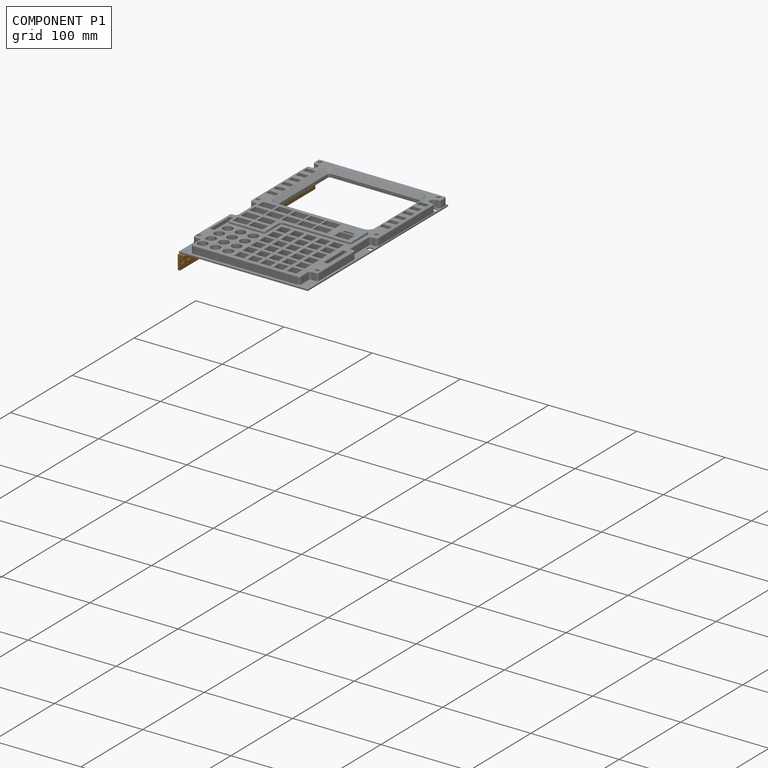
[diagram: component P1 — assembled]
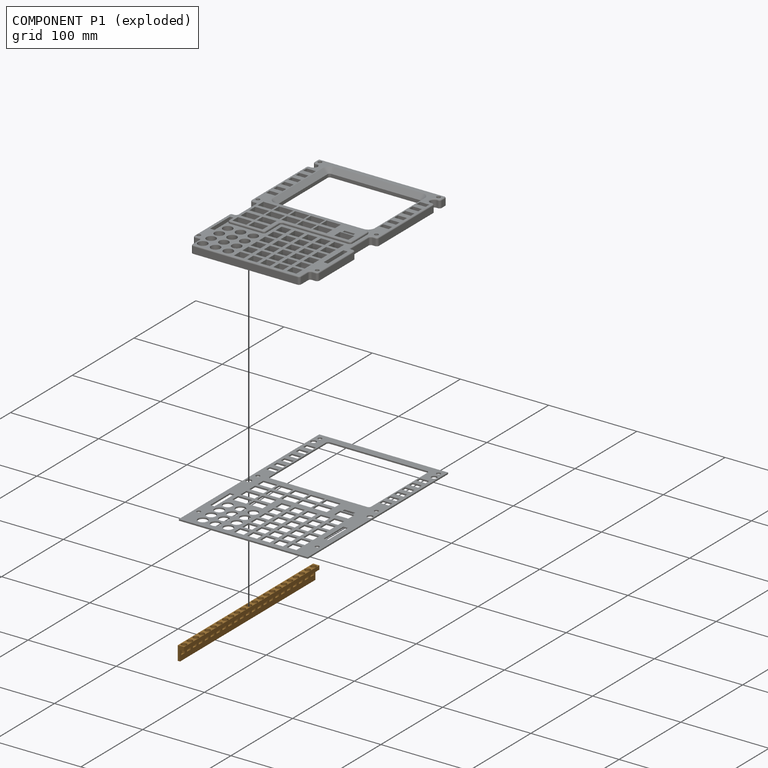
[diagram: component P1 — exploded]
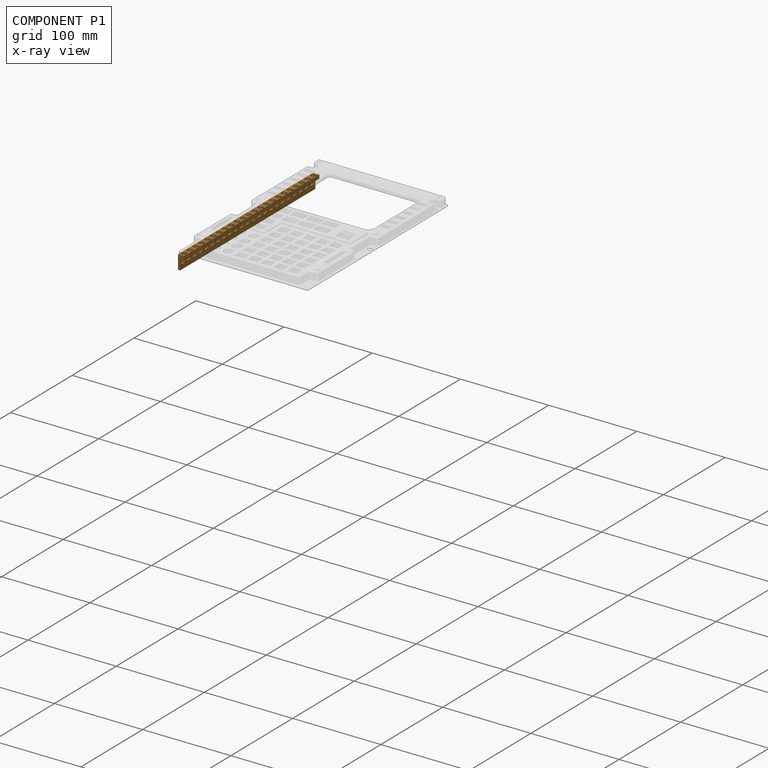
[diagram: component P1 — x-ray view]
COMPONENT P1 — geometry summary (no construction recipe available for this part):
  bounding box: 219.1 x 16.0 x 7.1 mm
  B-rep topology: 1 solid, 54 faces, 450 edges
  volume: 9510 mm^3 (38% of its bounding box)
  symmetry: mirror-symmetric across its y mid-plane
Held by: FASTENED mate "Fastened 2" to P0.
PROVENANCE & LICENSES
Assembly (occurrences, transforms, mates, per-part STEP geometry): AutoMate dataset, Zenodo record 7776208, CC0.
Construction recipes: CADFS (HuggingFace VladPyatov/CADFS, CC-BY-4.0, layered over the ABC dataset), FeatureScript reconstruction programs keyed by ABC model id.
Join: ABC meta listings map ABC model id -> Onshape documentId; within a shared document, parts are matched by geometric signature (bounding-box dims + volume at 0.1% relative tolerance, exact B-rep face/solid counts).
Verification: 2 of this assembly's 3 components carry a recipe attachment, and every attachment is mesh-verified: the CADFS STEP and the AutoMate member STEP were compared as meshes in their shared local frame (symmetric sampled-point-to-mesh distance); worst across the 2 attachments: below the mesh-comparison resolution (tessellation chordal tolerance ~0.405 mm) on a 270 mm part.
Renders: orthographic iso camera (az 35 / el 25); the floor grid conveys scale (grid pitch printed in each image; no ruler). In the exploded view each component is displaced by its stored offset vector: the offsets alone carry the explosion direction (mate normal/axis signs are not orientation cues and do not encode it), and separation distances are assigned per mate-chain, not proportionally to assembly-order depth.
